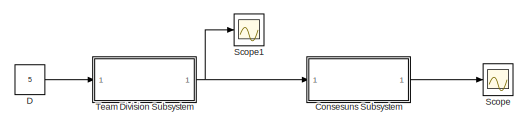
[diagram: root canvas - part 1/3, top left region]
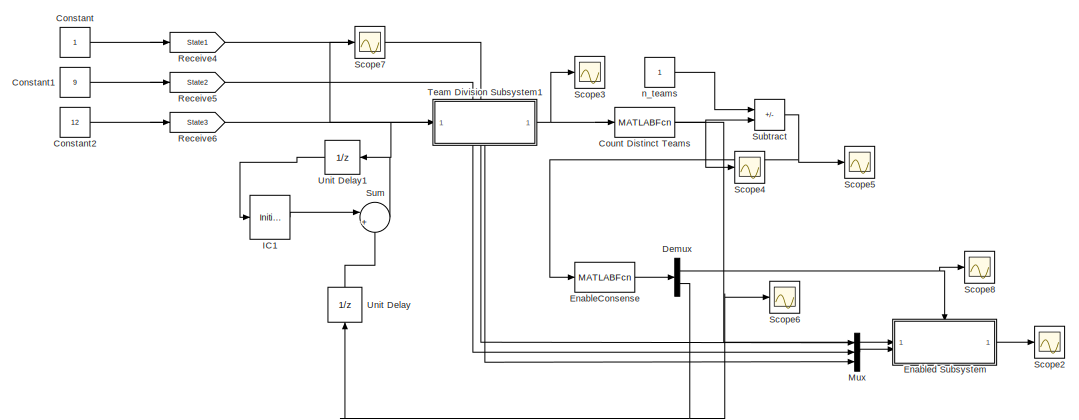
[diagram: root canvas - part 2/3, top right region]
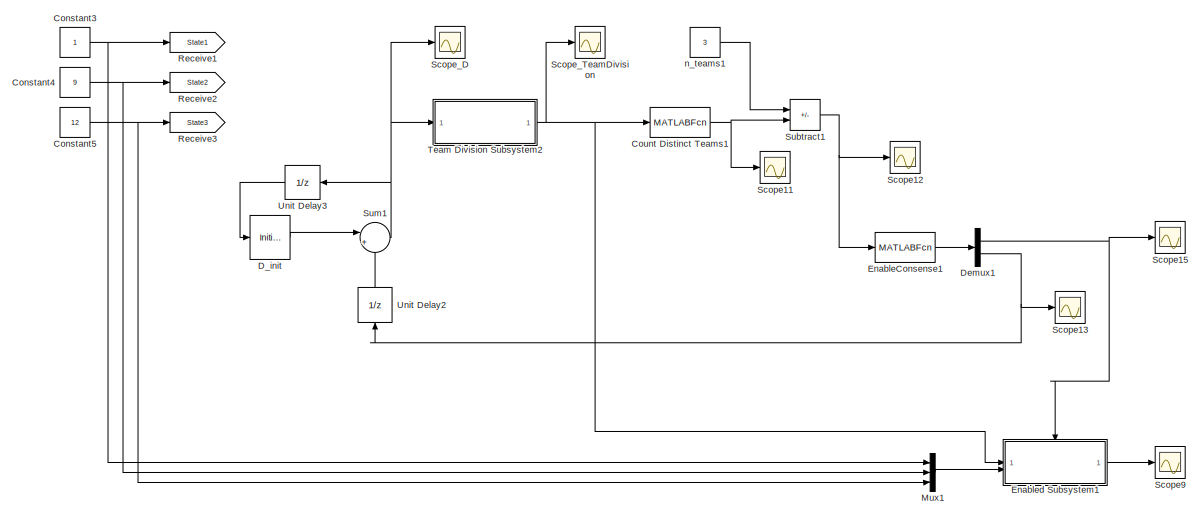
[diagram: root canvas - part 3/3, bottom left region]
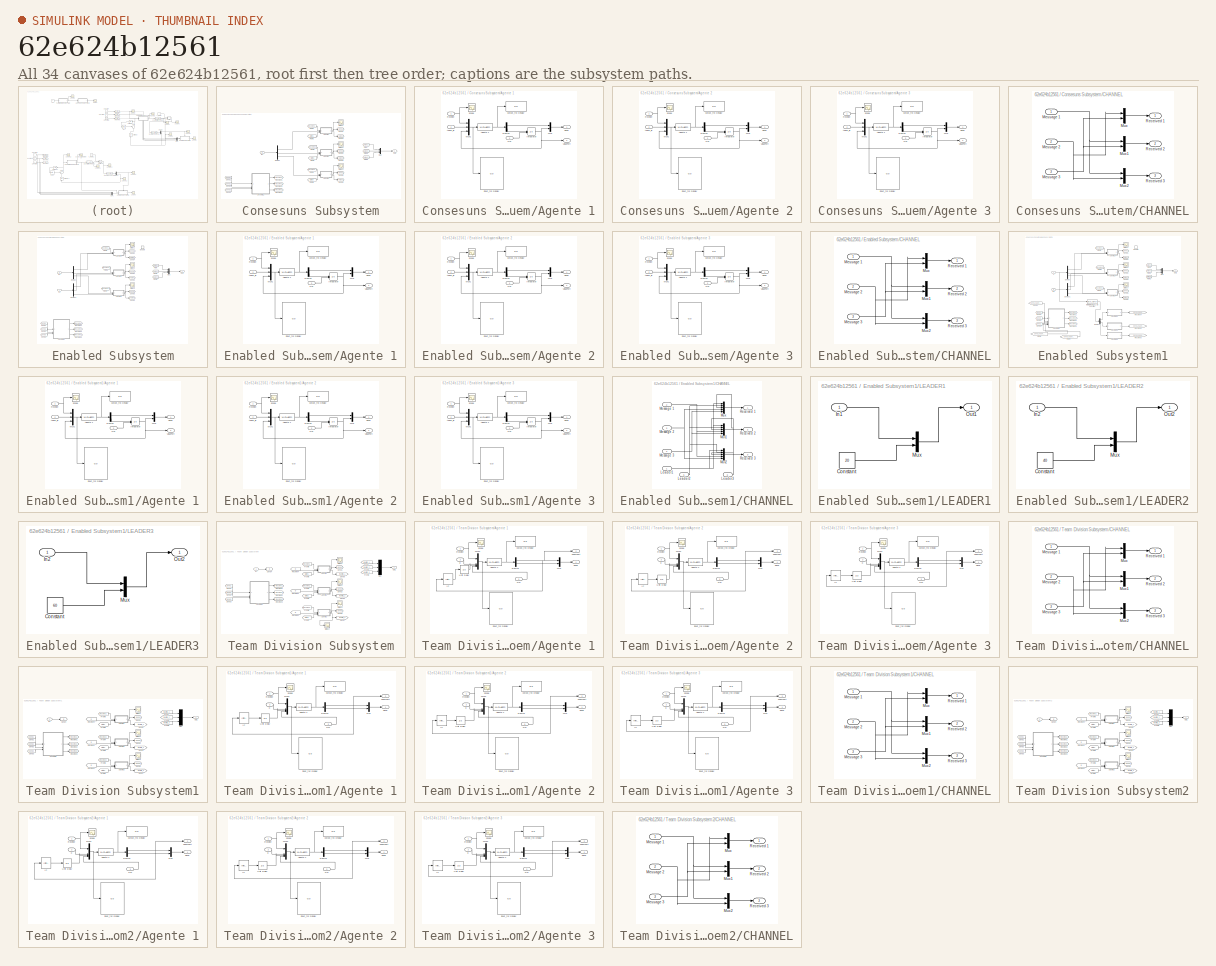
[diagram: thumbnail index - all 34 canvases of the model, root first then tree order]
MODEL slx_62e624b12561
KIND model
CONFIG AbsTol = auto
CONFIG EnableMultiTasking = off
CONFIG FixedStep = auto
CONFIG MaxStep = auto
CONFIG MinStep = auto
CONFIG RelTol = 1e-3
CONFIG SampleTimeConstraint = Unconstrained
CONFIG SolverName = VariableStepAuto
CONFIG StartTime = 0.0
CONFIG StopTime = 10
BLOCK [Goto]  Receive1
  GotoTag = State1
  TagVisibility = global
BLOCK [Goto]  Receive2
  GotoTag = State2
  TagVisibility = global
BLOCK [Goto]  Receive3
  GotoTag = State3
  TagVisibility = global
BLOCK [Goto]  Receive4
  Commented = on
  GotoTag = State1
  TagVisibility = global
BLOCK [Goto]  Receive5
  Commented = on
  GotoTag = State2
  TagVisibility = global
BLOCK [Goto]  Receive6
  Commented = on
  GotoTag = State3
  TagVisibility = global
BLOCK [SubSystem] Consesuns Subsystem
  Commented = on
BLOCK [Goto] Consesuns Subsystem/ Receive1
  GotoTag = Receive1
BLOCK [Goto] Consesuns Subsystem/ Receive2
  GotoTag = Receive2
BLOCK [Goto] Consesuns Subsystem/ Receive3
  GotoTag = Receive3
BLOCK [SubSystem] Consesuns Subsystem/Agente 1
BLOCK [MATLABFcn] Consesuns Subsystem/Agente 1/Agente 1
  MATLABFcn = consensus
  OutputDimensions = 2
BLOCK [Demux] Consesuns Subsystem/Agente 1/Demux
  Outputs = 2
BLOCK [Integrator] Consesuns Subsystem/Agente 1/Integrator
  InitialCondition = 1
  InitialConditionSource = external
BLOCK [Mux] Consesuns Subsystem/Agente 1/Mux
  DisplayOption = bar
  Inputs = 2
BLOCK [Mux] Consesuns Subsystem/Agente 1/Mux1
  DisplayOption = bar
  Inputs = 3
BLOCK [Inport] Consesuns Subsystem/Agente 1/Receive
BLOCK [Scope] Consesuns Subsystem/Agente 1/Scope
  Floating = off
  NumInputPorts = 1
  ScopeSpecificationString = Simulink.scopes.TimeScopeBlockCfg('CurrentConfiguration', extmgr.ConfigurationSet(extmgr.Configuration('Core','General UI',true),extmgr.Configuration('Core','Source UI',true),extmgr.Configuration('Sources','WiredSimulink',true,'DataLoggingVariableName','ScopeData6','DataLoggingSaveFormat','StructureWithTime','DataLoggingLimitDataPoints',true,'DataLoggingDecimation','1','DataLoggingDecimateData',tr...<+1750ch>  <repeated x18 — deduplicated; at blocks: Scope>
BLOCK [Outport] Consesuns Subsystem/Agente 1/Send
  VectorParamsAs1DForOutWhenUnconnected = off
BLOCK [Outport] Consesuns Subsystem/Agente 1/ValuePort
  Port = 2
BLOCK [Display] Consesuns Subsystem/Agente 1/input_fnc Display
  Decimation = 1
BLOCK [Display] Consesuns Subsystem/Agente 1/output_fnc Display
  Decimation = 1
BLOCK [Inport] Consesuns Subsystem/Agente 1/team_id
  Port = 2
BLOCK [Inport] Consesuns Subsystem/Agente 1/x(0)
  Port = 3
BLOCK [SubSystem] Consesuns Subsystem/Agente 2
BLOCK [MATLABFcn] Consesuns Subsystem/Agente 2/Agente 1
  MATLABFcn = consensus
  OutputDimensions = 2
BLOCK [Demux] Consesuns Subsystem/Agente 2/Demux
  Outputs = 2
BLOCK [Integrator] Consesuns Subsystem/Agente 2/Integrator
  InitialCondition = 1
  InitialConditionSource = external
BLOCK [Mux] Consesuns Subsystem/Agente 2/Mux
  DisplayOption = bar
  Inputs = 2
BLOCK [Mux] Consesuns Subsystem/Agente 2/Mux1
  DisplayOption = bar
  Inputs = 3
BLOCK [Inport] Consesuns Subsystem/Agente 2/Receive
BLOCK [Scope] Consesuns Subsystem/Agente 2/Scope
  Floating = off
  NumInputPorts = 1
BLOCK [Outport] Consesuns Subsystem/Agente 2/Send
  VectorParamsAs1DForOutWhenUnconnected = off
BLOCK [Outport] Consesuns Subsystem/Agente 2/ValuePort
  Port = 2
BLOCK [Display] Consesuns Subsystem/Agente 2/input_fnc Display
  Decimation = 1
BLOCK [Display] Consesuns Subsystem/Agente 2/output_fnc Display
  Decimation = 1
BLOCK [Inport] Consesuns Subsystem/Agente 2/team_id
  Port = 2
BLOCK [Inport] Consesuns Subsystem/Agente 2/x(0)
  Port = 3
BLOCK [SubSystem] Consesuns Subsystem/Agente 3
BLOCK [MATLABFcn] Consesuns Subsystem/Agente 3/Agente 1
  MATLABFcn = consensus
  OutputDimensions = 2
BLOCK [Demux] Consesuns Subsystem/Agente 3/Demux
  Outputs = 2
BLOCK [Integrator] Consesuns Subsystem/Agente 3/Integrator
  InitialCondition = 1
  InitialConditionSource = external
BLOCK [Mux] Consesuns Subsystem/Agente 3/Mux
  DisplayOption = bar
  Inputs = 2
BLOCK [Mux] Consesuns Subsystem/Agente 3/Mux1
  DisplayOption = bar
  Inputs = 3
BLOCK [Inport] Consesuns Subsystem/Agente 3/Receive
BLOCK [Scope] Consesuns Subsystem/Agente 3/Scope
  Floating = off
  NumInputPorts = 1
BLOCK [Outport] Consesuns Subsystem/Agente 3/Send
  VectorParamsAs1DForOutWhenUnconnected = off
BLOCK [Outport] Consesuns Subsystem/Agente 3/ValuePort
  Port = 2
BLOCK [Display] Consesuns Subsystem/Agente 3/input_fnc Display
  Decimation = 1
BLOCK [Display] Consesuns Subsystem/Agente 3/output_fnc Display
  Decimation = 1
BLOCK [Inport] Consesuns Subsystem/Agente 3/team_id
  Port = 2
BLOCK [Inport] Consesuns Subsystem/Agente 3/x(0)
  Port = 3
BLOCK [SubSystem] Consesuns Subsystem/CHANNEL
BLOCK [Inport] Consesuns Subsystem/CHANNEL/Message  2
  Port = 2
BLOCK [Inport] Consesuns Subsystem/CHANNEL/Message 1
BLOCK [Inport] Consesuns Subsystem/CHANNEL/Message 3
  Port = 3
BLOCK [Mux] Consesuns Subsystem/CHANNEL/Mux
  DisplayOption = bar
  Inputs = 2
BLOCK [Mux] Consesuns Subsystem/CHANNEL/Mux1
  DisplayOption = bar
  Inputs = 2
BLOCK [Mux] Consesuns Subsystem/CHANNEL/Mux2
  DisplayOption = bar
  Inputs = 2
BLOCK [Outport] Consesuns Subsystem/CHANNEL/Received 1
  VectorParamsAs1DForOutWhenUnconnected = off
BLOCK [Outport] Consesuns Subsystem/CHANNEL/Received 2
  Port = 2
  VectorParamsAs1DForOutWhenUnconnected = off
BLOCK [Outport] Consesuns Subsystem/CHANNEL/Received 3
  Port = 3
  VectorParamsAs1DForOutWhenUnconnected = off
BLOCK [Demux] Consesuns Subsystem/Demux
  Outputs = 3
BLOCK [From] Consesuns Subsystem/From
  GotoTag = Value1
BLOCK [From] Consesuns Subsystem/From1
  GotoTag = Value2
BLOCK [From] Consesuns Subsystem/From2
  GotoTag = Value3
BLOCK [From] Consesuns Subsystem/From3
  GotoTag = Receive2
BLOCK [From] Consesuns Subsystem/From4
  GotoTag = Receive3
BLOCK [From] Consesuns Subsystem/From5
  GotoTag = State1
  TagVisibility = global
BLOCK [From] Consesuns Subsystem/From6
  GotoTag = Receive1
BLOCK [From] Consesuns Subsystem/From7
  GotoTag = State2
  TagVisibility = global
BLOCK [From] Consesuns Subsystem/From8
  GotoTag = State3
  TagVisibility = global
BLOCK [Inport] Consesuns Subsystem/In1
BLOCK [Mux] Consesuns Subsystem/Mux
  DisplayOption = bar
  Inputs = 3
BLOCK [Outport] Consesuns Subsystem/Out1
BLOCK [Goto] Consesuns Subsystem/Send 1
  GotoTag = Send1
BLOCK [Goto] Consesuns Subsystem/Send 2
  GotoTag = Send2
BLOCK [Goto] Consesuns Subsystem/Send 3
  GotoTag = Value2
BLOCK [Goto] Consesuns Subsystem/Send 4
  GotoTag = Value1
BLOCK [Goto] Consesuns Subsystem/Send 5
  GotoTag = Send3
BLOCK [Goto] Consesuns Subsystem/Send 6
  GotoTag = Value3
BLOCK [From] Consesuns Subsystem/Send1
  CloseFcn = tagdialog Close
  GotoTag = Send1
BLOCK [From] Consesuns Subsystem/Send2
  CloseFcn = tagdialog Close
  GotoTag = Send2
BLOCK [From] Consesuns Subsystem/Send3
  CloseFcn = tagdialog Close
  GotoTag = Send3
BLOCK [Scope] Consesuns Subsystem/Status 1
  Floating = off
  NumInputPorts = 1
  ScopeSpecificationString = Simulink.scopes.TimeScopeBlockCfg('CurrentConfiguration', extmgr.ConfigurationSet(extmgr.Configuration('Core','General UI',true),extmgr.Configuration('Core','Source UI',true),extmgr.Configuration('Sources','WiredSimulink',true,'DataLoggingVariableName','ScopeData1','DataLoggingSaveFormat','StructureWithTime','DataLoggingDecimation','1','DataLoggingDecimateData',true),extmgr.Configuration('Visuals'...<+1691ch>
BLOCK [Scope] Consesuns Subsystem/Status 2
  Floating = off
  NumInputPorts = 1
  ScopeSpecificationString = Simulink.scopes.TimeScopeBlockCfg('CurrentConfiguration', extmgr.ConfigurationSet(extmgr.Configuration('Core','General UI',true),extmgr.Configuration('Core','Source UI',true),extmgr.Configuration('Sources','WiredSimulink',true,'DataLoggingVariableName','ScopeData4','DataLoggingSaveFormat','StructureWithTime','DataLoggingDecimation','1','DataLoggingDecimateData',true),extmgr.Configuration('Visuals'...<+1691ch>
BLOCK [Scope] Consesuns Subsystem/Status 3
  Floating = off
  NumInputPorts = 1
  ScopeSpecificationString = Simulink.scopes.TimeScopeBlockCfg('CurrentConfiguration', extmgr.ConfigurationSet(extmgr.Configuration('Core','General UI',true),extmgr.Configuration('Core','Source UI',true),extmgr.Configuration('Sources','WiredSimulink',true,'DataLoggingVariableName','ScopeData5','DataLoggingSaveFormat','StructureWithTime','DataLoggingDecimation','1','DataLoggingDecimateData',true),extmgr.Configuration('Visuals'...<+1691ch>
BLOCK [Constant] Constant
  Commented = on
BLOCK [Constant] Constant1
  Commented = on
  Value = 9
BLOCK [Constant] Constant2
  Commented = on
  Value = 12
BLOCK [Constant] Constant3
BLOCK [Constant] Constant4
  Value = 9
BLOCK [Constant] Constant5
  Value = 12
BLOCK [MATLABFcn] Count Distinct Teams
  Commented = on
  MATLABFcn = compute_n_teams
  OutputDimensions = 1
BLOCK [MATLABFcn] Count Distinct Teams1
  MATLABFcn = compute_n_teams
  OutputDimensions = 1
BLOCK [Constant] D
  Commented = on
  Value = 5
BLOCK [InitialCondition] D_init
  Value = 0
BLOCK [Demux] Demux
  Commented = on
  Outputs = 2
BLOCK [Demux] Demux1
  Outputs = 2
BLOCK [MATLABFcn] EnableConsense
  Commented = on
  MATLABFcn = enable_consensus
  OutputDimensions = 2
BLOCK [MATLABFcn] EnableConsense1
  MATLABFcn = enable_consensus
  OutputDimensions = 2
BLOCK [SubSystem] Enabled Subsystem
  Commented = on
  TreatAsAtomicUnit = on
BLOCK [Goto] Enabled Subsystem/ Receive1
  GotoTag = Receive1
BLOCK [Goto] Enabled Subsystem/ Receive2
  GotoTag = Receive2
BLOCK [Goto] Enabled Subsystem/ Receive3
  GotoTag = Receive3
BLOCK [SubSystem] Enabled Subsystem/Agente 1
BLOCK [MATLABFcn] Enabled Subsystem/Agente 1/Agente 1
  MATLABFcn = consensus
  OutputDimensions = 2
BLOCK [Demux] Enabled Subsystem/Agente 1/Demux
  Outputs = 2
BLOCK [Integrator] Enabled Subsystem/Agente 1/Integrator
  InitialCondition = 1
  InitialConditionSource = external
BLOCK [Mux] Enabled Subsystem/Agente 1/Mux
  DisplayOption = bar
  Inputs = 2
BLOCK [Mux] Enabled Subsystem/Agente 1/Mux1
  DisplayOption = bar
  Inputs = 3
BLOCK [Inport] Enabled Subsystem/Agente 1/Receive
BLOCK [Scope] Enabled Subsystem/Agente 1/Scope
  Floating = off
  NumInputPorts = 1
BLOCK [Outport] Enabled Subsystem/Agente 1/Send
  VectorParamsAs1DForOutWhenUnconnected = off
BLOCK [Outport] Enabled Subsystem/Agente 1/ValuePort
  Port = 2
BLOCK [Display] Enabled Subsystem/Agente 1/input_fnc Display
  Decimation = 1
BLOCK [Display] Enabled Subsystem/Agente 1/output_fnc Display
  Decimation = 1
BLOCK [Inport] Enabled Subsystem/Agente 1/team_id
  Port = 2
BLOCK [Inport] Enabled Subsystem/Agente 1/x(0)
  Port = 3
BLOCK [SubSystem] Enabled Subsystem/Agente 2
BLOCK [MATLABFcn] Enabled Subsystem/Agente 2/Agente 1
  MATLABFcn = consensus
  OutputDimensions = 2
BLOCK [Demux] Enabled Subsystem/Agente 2/Demux
  Outputs = 2
BLOCK [Integrator] Enabled Subsystem/Agente 2/Integrator
  InitialCondition = 1
  InitialConditionSource = external
BLOCK [Mux] Enabled Subsystem/Agente 2/Mux
  DisplayOption = bar
  Inputs = 2
BLOCK [Mux] Enabled Subsystem/Agente 2/Mux1
  DisplayOption = bar
  Inputs = 3
BLOCK [Inport] Enabled Subsystem/Agente 2/Receive
BLOCK [Scope] Enabled Subsystem/Agente 2/Scope
  Floating = off
  NumInputPorts = 1
BLOCK [Outport] Enabled Subsystem/Agente 2/Send
  VectorParamsAs1DForOutWhenUnconnected = off
BLOCK [Outport] Enabled Subsystem/Agente 2/ValuePort
  Port = 2
BLOCK [Display] Enabled Subsystem/Agente 2/input_fnc Display
  Decimation = 1
BLOCK [Display] Enabled Subsystem/Agente 2/output_fnc Display
  Decimation = 1
BLOCK [Inport] Enabled Subsystem/Agente 2/team_id
  Port = 2
BLOCK [Inport] Enabled Subsystem/Agente 2/x(0)
  Port = 3
BLOCK [SubSystem] Enabled Subsystem/Agente 3
BLOCK [MATLABFcn] Enabled Subsystem/Agente 3/Agente 1
  MATLABFcn = consensus
  OutputDimensions = 2
BLOCK [Demux] Enabled Subsystem/Agente 3/Demux
  Outputs = 2
BLOCK [Integrator] Enabled Subsystem/Agente 3/Integrator
  InitialCondition = 1
  InitialConditionSource = external
BLOCK [Mux] Enabled Subsystem/Agente 3/Mux
  DisplayOption = bar
  Inputs = 2
BLOCK [Mux] Enabled Subsystem/Agente 3/Mux1
  DisplayOption = bar
  Inputs = 3
BLOCK [Inport] Enabled Subsystem/Agente 3/Receive
BLOCK [Scope] Enabled Subsystem/Agente 3/Scope
  Floating = off
  NumInputPorts = 1
BLOCK [Outport] Enabled Subsystem/Agente 3/Send
  VectorParamsAs1DForOutWhenUnconnected = off
BLOCK [Outport] Enabled Subsystem/Agente 3/ValuePort
  Port = 2
BLOCK [Display] Enabled Subsystem/Agente 3/input_fnc Display
  Decimation = 1
BLOCK [Display] Enabled Subsystem/Agente 3/output_fnc Display
  Decimation = 1
BLOCK [Inport] Enabled Subsystem/Agente 3/team_id
  Port = 2
BLOCK [Inport] Enabled Subsystem/Agente 3/x(0)
  Port = 3
BLOCK [SubSystem] Enabled Subsystem/CHANNEL
BLOCK [Inport] Enabled Subsystem/CHANNEL/Message  2
  Port = 2
BLOCK [Inport] Enabled Subsystem/CHANNEL/Message 1
BLOCK [Inport] Enabled Subsystem/CHANNEL/Message 3
  Port = 3
BLOCK [Mux] Enabled Subsystem/CHANNEL/Mux
  DisplayOption = bar
  Inputs = 2
BLOCK [Mux] Enabled Subsystem/CHANNEL/Mux1
  DisplayOption = bar
  Inputs = 2
BLOCK [Mux] Enabled Subsystem/CHANNEL/Mux2
  DisplayOption = bar
  Inputs = 2
BLOCK [Outport] Enabled Subsystem/CHANNEL/Received 1
  VectorParamsAs1DForOutWhenUnconnected = off
BLOCK [Outport] Enabled Subsystem/CHANNEL/Received 2
  Port = 2
  VectorParamsAs1DForOutWhenUnconnected = off
BLOCK [Outport] Enabled Subsystem/CHANNEL/Received 3
  Port = 3
  VectorParamsAs1DForOutWhenUnconnected = off
BLOCK [Demux] Enabled Subsystem/Demux
  Outputs = 3
BLOCK [Demux] Enabled Subsystem/Demux1
  Outputs = 3
BLOCK [EnablePort] Enabled Subsystem/Enable
BLOCK [From] Enabled Subsystem/From
  GotoTag = Value1
BLOCK [From] Enabled Subsystem/From1
  GotoTag = Value2
BLOCK [From] Enabled Subsystem/From2
  GotoTag = Value3
BLOCK [From] Enabled Subsystem/From3
  GotoTag = Receive2
BLOCK [From] Enabled Subsystem/From4
  GotoTag = Receive3
BLOCK [From] Enabled Subsystem/From6
  GotoTag = Receive1
BLOCK [Inport] Enabled Subsystem/In1
BLOCK [Inport] Enabled Subsystem/In2
  Port = 2
BLOCK [Mux] Enabled Subsystem/Mux
  DisplayOption = bar
  Inputs = 3
BLOCK [Outport] Enabled Subsystem/Out1
BLOCK [Goto] Enabled Subsystem/Send 1
  GotoTag = Send1
BLOCK [Goto] Enabled Subsystem/Send 2
  GotoTag = Send2
BLOCK [Goto] Enabled Subsystem/Send 3
  GotoTag = Value2
BLOCK [Goto] Enabled Subsystem/Send 4
  GotoTag = Value1
BLOCK [Goto] Enabled Subsystem/Send 5
  GotoTag = Send3
BLOCK [Goto] Enabled Subsystem/Send 6
  GotoTag = Value3
BLOCK [From] Enabled Subsystem/Send1
  CloseFcn = tagdialog Close
  GotoTag = Send1
BLOCK [From] Enabled Subsystem/Send2
  CloseFcn = tagdialog Close
  GotoTag = Send2
BLOCK [From] Enabled Subsystem/Send3
  CloseFcn = tagdialog Close
  GotoTag = Send3
BLOCK [Scope] Enabled Subsystem/Status 1
  Floating = off
  NumInputPorts = 1
  ScopeSpecificationString = Simulink.scopes.TimeScopeBlockCfg('CurrentConfiguration', extmgr.ConfigurationSet(extmgr.Configuration('Core','General UI',true),extmgr.Configuration('Core','Source UI',true),extmgr.Configuration('Sources','WiredSimulink',true,'DataLoggingVariableName','ScopeData8','DataLoggingSaveFormat','StructureWithTime','DataLoggingDecimation','1','DataLoggingDecimateData',true),extmgr.Configuration('Visuals'...<+1691ch>
BLOCK [Scope] Enabled Subsystem/Status 2
  Floating = off
  NumInputPorts = 1
  ScopeSpecificationString = Simulink.scopes.TimeScopeBlockCfg('CurrentConfiguration', extmgr.ConfigurationSet(extmgr.Configuration('Core','General UI',true),extmgr.Configuration('Core','Source UI',true),extmgr.Configuration('Sources','WiredSimulink',true,'DataLoggingVariableName','ScopeData9','DataLoggingSaveFormat','StructureWithTime','DataLoggingDecimation','1','DataLoggingDecimateData',true),extmgr.Configuration('Visuals'...<+1691ch>
BLOCK [Scope] Enabled Subsystem/Status 3
  Floating = off
  NumInputPorts = 1
  ScopeSpecificationString = Simulink.scopes.TimeScopeBlockCfg('CurrentConfiguration', extmgr.ConfigurationSet(extmgr.Configuration('Core','General UI',true),extmgr.Configuration('Core','Source UI',true),extmgr.Configuration('Sources','WiredSimulink',true,'DataLoggingVariableName','ScopeData10','DataLoggingSaveFormat','StructureWithTime','DataLoggingDecimation','1','DataLoggingDecimateData',true),extmgr.Configuration('Visuals...<+1692ch>
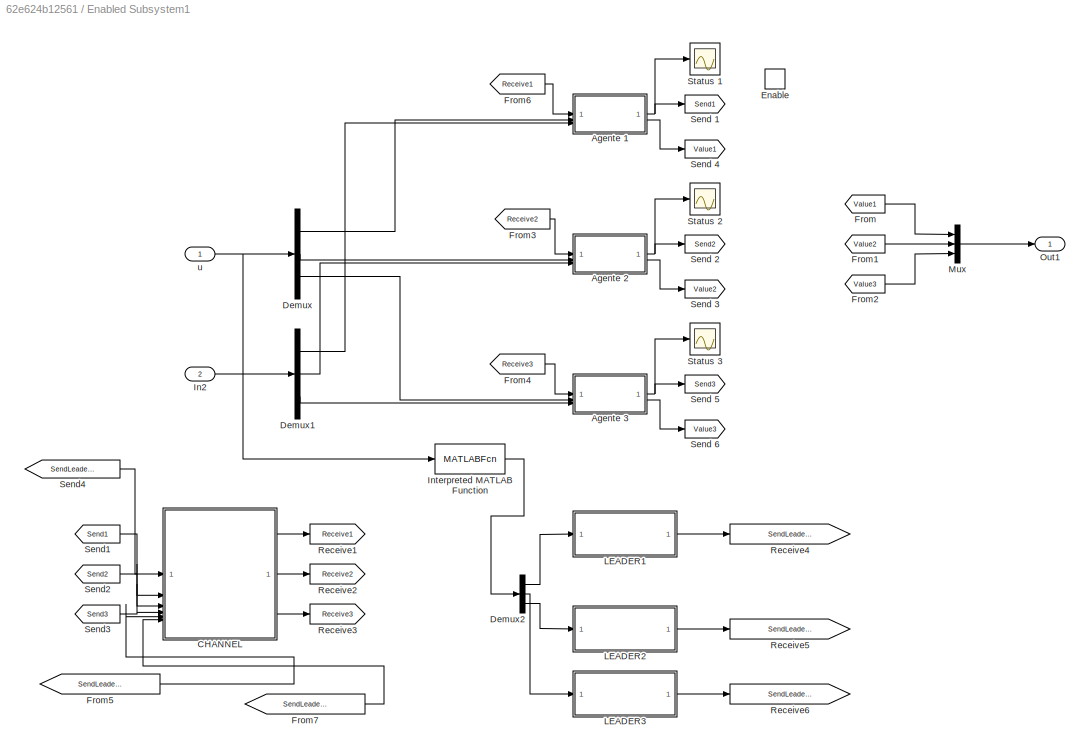
BLOCK [SubSystem] Enabled Subsystem1
  TreatAsAtomicUnit = on
BLOCK [Goto] Enabled Subsystem1/ Receive1
  GotoTag = Receive1
BLOCK [Goto] Enabled Subsystem1/ Receive2
  GotoTag = Receive2
BLOCK [Goto] Enabled Subsystem1/ Receive3
  GotoTag = Receive3
BLOCK [Goto] Enabled Subsystem1/ Receive4
  GotoTag = SendLeader1
BLOCK [Goto] Enabled Subsystem1/ Receive5
  GotoTag = SendLeader2
BLOCK [Goto] Enabled Subsystem1/ Receive6
  GotoTag = SendLeader3
BLOCK [SubSystem] Enabled Subsystem1/Agente 1
BLOCK [MATLABFcn] Enabled Subsystem1/Agente 1/Agente 1
  MATLABFcn = consensus
  OutputDimensions = 2
BLOCK [Demux] Enabled Subsystem1/Agente 1/Demux
  Outputs = 2
BLOCK [Integrator] Enabled Subsystem1/Agente 1/Integrator
  InitialCondition = 1
  InitialConditionSource = external
BLOCK [Mux] Enabled Subsystem1/Agente 1/Mux
  DisplayOption = bar
  Inputs = 2
BLOCK [Mux] Enabled Subsystem1/Agente 1/Mux1
  DisplayOption = bar
  Inputs = 3
BLOCK [Inport] Enabled Subsystem1/Agente 1/Receive
BLOCK [Scope] Enabled Subsystem1/Agente 1/Scope
  Floating = off
  NumInputPorts = 1
BLOCK [Outport] Enabled Subsystem1/Agente 1/Send
  VectorParamsAs1DForOutWhenUnconnected = off
BLOCK [Outport] Enabled Subsystem1/Agente 1/ValuePort
  Port = 2
BLOCK [Display] Enabled Subsystem1/Agente 1/input_fnc Display
  Decimation = 1
BLOCK [Display] Enabled Subsystem1/Agente 1/output_fnc Display
  Decimation = 1
BLOCK [Inport] Enabled Subsystem1/Agente 1/team_id
  Port = 2
BLOCK [Inport] Enabled Subsystem1/Agente 1/x(0)
  Port = 3
BLOCK [SubSystem] Enabled Subsystem1/Agente 2
BLOCK [MATLABFcn] Enabled Subsystem1/Agente 2/Agente 1
  MATLABFcn = consensus
  OutputDimensions = 2
BLOCK [Demux] Enabled Subsystem1/Agente 2/Demux
  Outputs = 2
BLOCK [Integrator] Enabled Subsystem1/Agente 2/Integrator
  InitialCondition = 1
  InitialConditionSource = external
BLOCK [Mux] Enabled Subsystem1/Agente 2/Mux
  DisplayOption = bar
  Inputs = 2
BLOCK [Mux] Enabled Subsystem1/Agente 2/Mux1
  DisplayOption = bar
  Inputs = 3
BLOCK [Inport] Enabled Subsystem1/Agente 2/Receive
BLOCK [Scope] Enabled Subsystem1/Agente 2/Scope
  Floating = off
  NumInputPorts = 1
BLOCK [Outport] Enabled Subsystem1/Agente 2/Send
  VectorParamsAs1DForOutWhenUnconnected = off
BLOCK [Outport] Enabled Subsystem1/Agente 2/ValuePort
  Port = 2
BLOCK [Display] Enabled Subsystem1/Agente 2/input_fnc Display
  Decimation = 1
BLOCK [Display] Enabled Subsystem1/Agente 2/output_fnc Display
  Decimation = 1
BLOCK [Inport] Enabled Subsystem1/Agente 2/team_id
  Port = 2
BLOCK [Inport] Enabled Subsystem1/Agente 2/x(0)
  Port = 3
BLOCK [SubSystem] Enabled Subsystem1/Agente 3
BLOCK [MATLABFcn] Enabled Subsystem1/Agente 3/Agente 1
  MATLABFcn = consensus
  OutputDimensions = 2
BLOCK [Demux] Enabled Subsystem1/Agente 3/Demux
  Outputs = 2
BLOCK [Integrator] Enabled Subsystem1/Agente 3/Integrator
  InitialCondition = 1
  InitialConditionSource = external
BLOCK [Mux] Enabled Subsystem1/Agente 3/Mux
  DisplayOption = bar
  Inputs = 2
BLOCK [Mux] Enabled Subsystem1/Agente 3/Mux1
  DisplayOption = bar
  Inputs = 3
BLOCK [Inport] Enabled Subsystem1/Agente 3/Receive
BLOCK [Scope] Enabled Subsystem1/Agente 3/Scope
  Floating = off
  NumInputPorts = 1
BLOCK [Outport] Enabled Subsystem1/Agente 3/Send
  VectorParamsAs1DForOutWhenUnconnected = off
BLOCK [Outport] Enabled Subsystem1/Agente 3/ValuePort
  Port = 2
BLOCK [Display] Enabled Subsystem1/Agente 3/input_fnc Display
  Decimation = 1
BLOCK [Display] Enabled Subsystem1/Agente 3/output_fnc Display
  Decimation = 1
BLOCK [Inport] Enabled Subsystem1/Agente 3/team_id
  Port = 2
BLOCK [Inport] Enabled Subsystem1/Agente 3/x(0)
  Port = 3
BLOCK [SubSystem] Enabled Subsystem1/CHANNEL
BLOCK [Inport] Enabled Subsystem1/CHANNEL/Leader1
BLOCK [Inport] Enabled Subsystem1/CHANNEL/Leader2
  Port = 5
BLOCK [Inport] Enabled Subsystem1/CHANNEL/Leader3
  Port = 6
BLOCK [Inport] Enabled Subsystem1/CHANNEL/Message  2
  Port = 3
BLOCK [Inport] Enabled Subsystem1/CHANNEL/Message 1
  Port = 2
BLOCK [Inport] Enabled Subsystem1/CHANNEL/Message 3
  Port = 4
BLOCK [Mux] Enabled Subsystem1/CHANNEL/Mux
  DisplayOption = bar
  Inputs = 5
BLOCK [Mux] Enabled Subsystem1/CHANNEL/Mux1
  DisplayOption = bar
  Inputs = 5
BLOCK [Mux] Enabled Subsystem1/CHANNEL/Mux2
  DisplayOption = bar
  Inputs = 5
BLOCK [Outport] Enabled Subsystem1/CHANNEL/Received 1
  VectorParamsAs1DForOutWhenUnconnected = off
BLOCK [Outport] Enabled Subsystem1/CHANNEL/Received 2
  Port = 2
  VectorParamsAs1DForOutWhenUnconnected = off
BLOCK [Outport] Enabled Subsystem1/CHANNEL/Received 3
  Port = 3
  VectorParamsAs1DForOutWhenUnconnected = off
BLOCK [Demux] Enabled Subsystem1/Demux
  Outputs = 3
BLOCK [Demux] Enabled Subsystem1/Demux1
  Outputs = 3
BLOCK [Demux] Enabled Subsystem1/Demux2
  Outputs = 3
BLOCK [EnablePort] Enabled Subsystem1/Enable
BLOCK [From] Enabled Subsystem1/From
  GotoTag = Value1
BLOCK [From] Enabled Subsystem1/From1
  GotoTag = Value2
BLOCK [From] Enabled Subsystem1/From2
  GotoTag = Value3
BLOCK [From] Enabled Subsystem1/From3
  GotoTag = Receive2
BLOCK [From] Enabled Subsystem1/From4
  GotoTag = Receive3
BLOCK [From] Enabled Subsystem1/From5
  GotoTag = SendLeader2
BLOCK [From] Enabled Subsystem1/From6
  GotoTag = Receive1
BLOCK [From] Enabled Subsystem1/From7
  GotoTag = SendLeader3
BLOCK [Inport] Enabled Subsystem1/In2
  Port = 2
BLOCK [MATLABFcn] Enabled Subsystem1/Interpreted MATLAB Function
  MATLABFcn = dispatch_team_ids
  OutputDimensions = 3
BLOCK [SubSystem] Enabled Subsystem1/LEADER1
BLOCK [Constant] Enabled Subsystem1/LEADER1/Constant
  Value = 20
BLOCK [Inport] Enabled Subsystem1/LEADER1/In1
BLOCK [Mux] Enabled Subsystem1/LEADER1/Mux
  DisplayOption = bar
  Inputs = 2
BLOCK [Outport] Enabled Subsystem1/LEADER1/Out1
BLOCK [SubSystem] Enabled Subsystem1/LEADER2
BLOCK [Constant] Enabled Subsystem1/LEADER2/Constant
  Value = 40
BLOCK [Inport] Enabled Subsystem1/LEADER2/In2
BLOCK [Mux] Enabled Subsystem1/LEADER2/Mux
  DisplayOption = bar
  Inputs = 2
BLOCK [Outport] Enabled Subsystem1/LEADER2/Out2
BLOCK [SubSystem] Enabled Subsystem1/LEADER3
BLOCK [Constant] Enabled Subsystem1/LEADER3/Constant
  Value = 60
BLOCK [Inport] Enabled Subsystem1/LEADER3/In2
BLOCK [Mux] Enabled Subsystem1/LEADER3/Mux
  DisplayOption = bar
  Inputs = 2
BLOCK [Outport] Enabled Subsystem1/LEADER3/Out2
BLOCK [Mux] Enabled Subsystem1/Mux
  DisplayOption = bar
  Inputs = 3
BLOCK [Outport] Enabled Subsystem1/Out1
BLOCK [Goto] Enabled Subsystem1/Send 1
  GotoTag = Send1
BLOCK [Goto] Enabled Subsystem1/Send 2
  GotoTag = Send2
BLOCK [Goto] Enabled Subsystem1/Send 3
  GotoTag = Value2
BLOCK [Goto] Enabled Subsystem1/Send 4
  GotoTag = Value1
BLOCK [Goto] Enabled Subsystem1/Send 5
  GotoTag = Send3
BLOCK [Goto] Enabled Subsystem1/Send 6
  GotoTag = Value3
BLOCK [From] Enabled Subsystem1/Send1
  CloseFcn = tagdialog Close
  GotoTag = Send1
BLOCK [From] Enabled Subsystem1/Send2
  CloseFcn = tagdialog Close
  GotoTag = Send2
BLOCK [From] Enabled Subsystem1/Send3
  CloseFcn = tagdialog Close
  GotoTag = Send3
BLOCK [From] Enabled Subsystem1/Send4
  CloseFcn = tagdialog Close
  GotoTag = SendLeader1
BLOCK [Scope] Enabled Subsystem1/Status 1
  Floating = off
  NumInputPorts = 1
  ScopeSpecificationString = Simulink.scopes.TimeScopeBlockCfg('CurrentConfiguration', extmgr.ConfigurationSet(extmgr.Configuration('Core','General UI',true),extmgr.Configuration('Core','Source UI',true),extmgr.Configuration('Sources','WiredSimulink',true,'DataLoggingVariableName','ScopeData8','DataLoggingSaveFormat','StructureWithTime','DataLoggingDecimation','1','DataLoggingDecimateData',true),extmgr.Configuration('Visuals'...<+1691ch>
BLOCK [Scope] Enabled Subsystem1/Status 2
  Floating = off
  NumInputPorts = 1
  ScopeSpecificationString = Simulink.scopes.TimeScopeBlockCfg('CurrentConfiguration', extmgr.ConfigurationSet(extmgr.Configuration('Core','General UI',true),extmgr.Configuration('Core','Source UI',true),extmgr.Configuration('Sources','WiredSimulink',true,'DataLoggingVariableName','ScopeData9','DataLoggingSaveFormat','StructureWithTime','DataLoggingDecimation','1','DataLoggingDecimateData',true),extmgr.Configuration('Visuals'...<+1691ch>
BLOCK [Scope] Enabled Subsystem1/Status 3
  Floating = off
  NumInputPorts = 1
  ScopeSpecificationString = Simulink.scopes.TimeScopeBlockCfg('CurrentConfiguration', extmgr.ConfigurationSet(extmgr.Configuration('Core','General UI',true),extmgr.Configuration('Core','Source UI',true),extmgr.Configuration('Sources','WiredSimulink',true,'DataLoggingVariableName','ScopeData10','DataLoggingSaveFormat','StructureWithTime','DataLoggingDecimation','1','DataLoggingDecimateData',true),extmgr.Configuration('Visuals...<+1692ch>
BLOCK [Inport] Enabled Subsystem1/u
BLOCK [InitialCondition] IC1
  Commented = on
  Value = 0
BLOCK [Mux] Mux
  Commented = on
  DisplayOption = bar
  Inputs = 3
BLOCK [Mux] Mux1
  DisplayOption = bar
  Inputs = 3
BLOCK [Scope] Scope
  Commented = on
  Floating = off
  NumInputPorts = 1
  ScopeSpecificationString = Simulink.scopes.TimeScopeBlockCfg('CurrentConfiguration', extmgr.ConfigurationSet(extmgr.Configuration('Core','General UI',true),extmgr.Configuration('Core','Source UI',true),extmgr.Configuration('Sources','WiredSimulink',true,'DataLoggingVariableName','ScopeData6'),extmgr.Configuration('Visuals','Time Domain',true,'SerializedDisplays',{struct('MinYLimReal','-0.375','MaxYLimReal','13.375','YLabelR...<+1455ch>
BLOCK [Scope] Scope1
  Commented = on
  Floating = off
  NumInputPorts = 1
  ScopeSpecificationString = Simulink.scopes.TimeScopeBlockCfg('CurrentConfiguration', extmgr.ConfigurationSet(extmgr.Configuration('Core','General UI',true),extmgr.Configuration('Core','Source UI',true),extmgr.Configuration('Sources','WiredSimulink',true,'DataLoggingVariableName','ScopeData3'),extmgr.Configuration('Visuals','Time Domain',true,'SerializedDisplays',{struct('MinYLimReal','-125.00000','MaxYLimReal','1125.00000',...<+1506ch>
BLOCK [Scope] Scope11
  Floating = off
  NumInputPorts = 1
  ScopeSpecificationString = Simulink.scopes.TimeScopeBlockCfg('CurrentConfiguration', extmgr.ConfigurationSet(extmgr.Configuration('Core','General UI',true),extmgr.Configuration('Core','Source UI',true),extmgr.Configuration('Sources','WiredSimulink',true,'DataLoggingVariableName','ScopeData12'),extmgr.Configuration('Visuals','Time Domain',true,'SerializedDisplays',{struct('MinYLimReal','0.75','MaxYLimReal','3.25','YLabelReal...<+1354ch>
BLOCK [Scope] Scope12
  Floating = off
  NumInputPorts = 1
  ScopeSpecificationString = Simulink.scopes.TimeScopeBlockCfg('CurrentConfiguration', extmgr.ConfigurationSet(extmgr.Configuration('Core','General UI',true),extmgr.Configuration('Core','Source UI',true),extmgr.Configuration('Sources','WiredSimulink',true,'DataLoggingVariableName','ScopeData13'),extmgr.Configuration('Visuals','Time Domain',true,'SerializedDisplays',{struct('MinYLimReal','-2.25','MaxYLimReal','0.25','YLabelRea...<+1350ch>
BLOCK [Scope] Scope13
  Floating = off
  NumInputPorts = 1
  ScopeSpecificationString = Simulink.scopes.TimeScopeBlockCfg('CurrentConfiguration', extmgr.ConfigurationSet(extmgr.Configuration('Core','General UI',true),extmgr.Configuration('Core','Source UI',true),extmgr.Configuration('Sources','WiredSimulink',true,'DataLoggingVariableName','ScopeData14'),extmgr.Configuration('Visuals','Time Domain',true,'SerializedDisplays',{struct('MinYLimReal','-0.125','MaxYLimReal','1.125','YLabelR...<+1355ch>
BLOCK [Scope] Scope15
  Floating = off
  NumInputPorts = 1
  ScopeSpecificationString = Simulink.scopes.TimeScopeBlockCfg('CurrentConfiguration', extmgr.ConfigurationSet(extmgr.Configuration('Core','General UI',true),extmgr.Configuration('Core','Source UI',true),extmgr.Configuration('Sources','WiredSimulink',true,'DataLoggingVariableName','ScopeData16'),extmgr.Configuration('Visuals','Time Domain',true,'SerializedDisplays',{struct('MinYLimReal','-0.125','MaxYLimReal','1.125','YLabelR...<+1355ch>
BLOCK [Scope] Scope2
  Commented = on
  Floating = off
  NumInputPorts = 1
  ScopeSpecificationString = Simulink.scopes.TimeScopeBlockCfg('CurrentConfiguration', extmgr.ConfigurationSet(extmgr.Configuration('Core','General UI',true),extmgr.Configuration('Core','Source UI',true),extmgr.Configuration('Sources','WiredSimulink',true,'DataLoggingVariableName','ScopeData1'),extmgr.Configuration('Visuals','Time Domain',true,'SerializedDisplays',{struct('MinYLimReal','7.29449','MaxYLimReal','7.35796','YLabe...<+1464ch>
BLOCK [Scope] Scope3
  Commented = on
  Floating = off
  NumInputPorts = 1
  ScopeSpecificationString = Simulink.scopes.TimeScopeBlockCfg('CurrentConfiguration', extmgr.ConfigurationSet(extmgr.Configuration('Core','General UI',true),extmgr.Configuration('Core','Source UI',true),extmgr.Configuration('Sources','WiredSimulink',true,'DataLoggingVariableName','ScopeData2'),extmgr.Configuration('Visuals','Time Domain',true,'SerializedDisplays',{struct('MinYLimReal','-37.5','MaxYLimReal','337.5','YLabelRea...<+1487ch>
BLOCK [Scope] Scope4
  Commented = on
  Floating = off
  NumInputPorts = 1
  ScopeSpecificationString = Simulink.scopes.TimeScopeBlockCfg('CurrentConfiguration', extmgr.ConfigurationSet(extmgr.Configuration('Core','General UI',true),extmgr.Configuration('Core','Source UI',true),extmgr.Configuration('Sources','WiredSimulink',true,'DataLoggingVariableName','ScopeData3'),extmgr.Configuration('Visuals','Time Domain',true,'SerializedDisplays',{struct('MinYLimReal','0.75','MaxYLimReal','3.25','YLabelReal'...<+1353ch>
BLOCK [Scope] Scope5
  Commented = on
  Floating = off
  NumInputPorts = 1
  ScopeSpecificationString = Simulink.scopes.TimeScopeBlockCfg('CurrentConfiguration', extmgr.ConfigurationSet(extmgr.Configuration('Core','General UI',true),extmgr.Configuration('Core','Source UI',true),extmgr.Configuration('Sources','WiredSimulink',true,'DataLoggingVariableName','ScopeData4'),extmgr.Configuration('Visuals','Time Domain',true,'SerializedDisplays',{struct('MinYLimReal','-2.25','MaxYLimReal','0.25','YLabelReal...<+1349ch>
BLOCK [Scope] Scope6
  Commented = on
  Floating = off
  NumInputPorts = 1
  ScopeSpecificationString = Simulink.scopes.TimeScopeBlockCfg('CurrentConfiguration', extmgr.ConfigurationSet(extmgr.Configuration('Core','General UI',true),extmgr.Configuration('Core','Source UI',true),extmgr.Configuration('Sources','WiredSimulink',true,'DataLoggingVariableName','ScopeData5'),extmgr.Configuration('Visuals','Time Domain',true,'SerializedDisplays',{struct('MinYLimReal','-0.125','MaxYLimReal','1.125','YLabelRe...<+1354ch>
BLOCK [Scope] Scope7
  Commented = on
  Floating = off
  NumInputPorts = 1
  ScopeSpecificationString = Simulink.scopes.TimeScopeBlockCfg('CurrentConfiguration', extmgr.ConfigurationSet(extmgr.Configuration('Core','General UI',true),extmgr.Configuration('Core','Source UI',true),extmgr.Configuration('Sources','WiredSimulink',true,'DataLoggingVariableName','ScopeData6'),extmgr.Configuration('Visuals','Time Domain',true,'SerializedDisplays',{struct('MinYLimReal','-53.00000','MaxYLimReal','7.00000','YLa...<+1443ch>
BLOCK [Scope] Scope8
  Commented = on
  Floating = off
  NumInputPorts = 1
  ScopeSpecificationString = Simulink.scopes.TimeScopeBlockCfg('CurrentConfiguration', extmgr.ConfigurationSet(extmgr.Configuration('Core','General UI',true),extmgr.Configuration('Core','Source UI',true),extmgr.Configuration('Sources','WiredSimulink',true,'DataLoggingVariableName','ScopeData7'),extmgr.Configuration('Visuals','Time Domain',true,'SerializedDisplays',{struct('MinYLimReal','-0.125','MaxYLimReal','1.125','YLabelRe...<+1354ch>
BLOCK [Scope] Scope9
  Floating = off
  NumInputPorts = 1
  ScopeSpecificationString = Simulink.scopes.TimeScopeBlockCfg('CurrentConfiguration', extmgr.ConfigurationSet(extmgr.Configuration('Core','General UI',true),extmgr.Configuration('Core','Source UI',true),extmgr.Configuration('Sources','WiredSimulink',true,'DataLoggingVariableName','ScopeData17'),extmgr.Configuration('Visuals','Time Domain',true,'SerializedDisplays',{struct('MinYLimReal','-7.49965','MaxYLimReal','67.49682','YL...<+1474ch>
BLOCK [Scope] Scope_D
  Floating = off
  NumInputPorts = 1
  ScopeSpecificationString = Simulink.scopes.TimeScopeBlockCfg('CurrentConfiguration', extmgr.ConfigurationSet(extmgr.Configuration('Core','General UI',true),extmgr.Configuration('Core','Source UI',true),extmgr.Configuration('Sources','WiredSimulink',true,'DataLoggingVariableName','ScopeData15'),extmgr.Configuration('Visuals','Time Domain',true,'SerializedDisplays',{struct('MinYLimReal','-53.00000','MaxYLimReal','7.00000','YL...<+1445ch>
BLOCK [Scope] Scope_TeamDivision
  Floating = off
  NumInputPorts = 1
  ScopeSpecificationString = Simulink.scopes.TimeScopeBlockCfg('CurrentConfiguration', extmgr.ConfigurationSet(extmgr.Configuration('Core','General UI',true),extmgr.Configuration('Core','Source UI',true),extmgr.Configuration('Sources','WiredSimulink',true,'DataLoggingVariableName','ScopeData11'),extmgr.Configuration('Visuals','Time Domain',true,'SerializedDisplays',{struct('MinYLimReal','-37.5','MaxYLimReal','337.5','YLabelRe...<+1488ch>
BLOCK [Sum] Subtract
  Commented = on
  IconShape = rectangular
  Inputs = +-
BLOCK [Sum] Subtract1
  IconShape = rectangular
  Inputs = +-
BLOCK [Sum] Sum
  Commented = on
  Inputs = |++
BLOCK [Sum] Sum1
  Inputs = |++
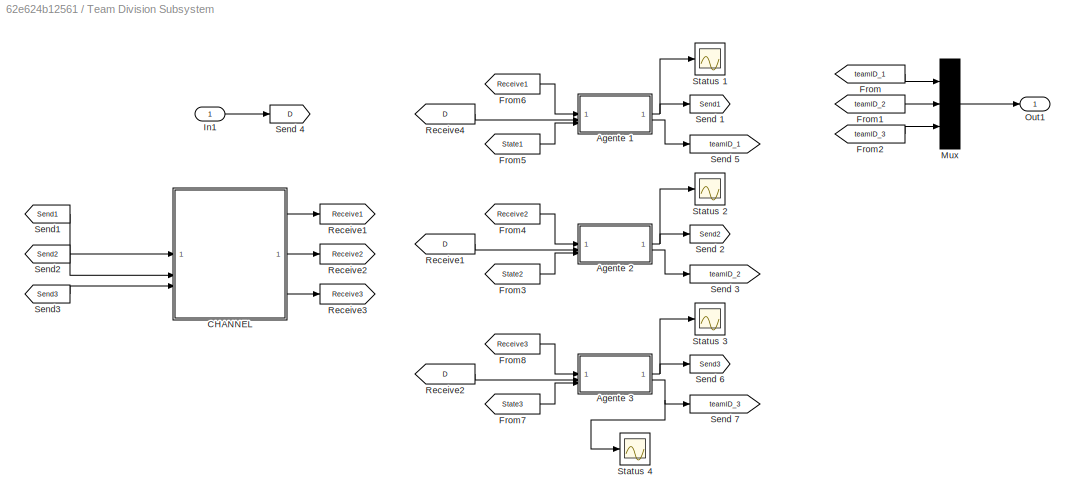
BLOCK [SubSystem] Team Division Subsystem
  Commented = on
BLOCK [Goto] Team Division Subsystem/ Receive1
  GotoTag = Receive1
BLOCK [Goto] Team Division Subsystem/ Receive2
  GotoTag = Receive2
BLOCK [Goto] Team Division Subsystem/ Receive3
  GotoTag = Receive3
BLOCK [SubSystem] Team Division Subsystem/Agente 1
BLOCK [MATLABFcn] Team Division Subsystem/Agente 1/Agente 1
  MATLABFcn = team_division
  OutputDimensions = 2
BLOCK [Demux] Team Division Subsystem/Agente 1/Demux
  Outputs = 2
BLOCK [InitialCondition] Team Division Subsystem/Agente 1/IC
  Value = 1000
BLOCK [Mux] Team Division Subsystem/Agente 1/Mux
  DisplayOption = bar
  Inputs = 2
BLOCK [Mux] Team Division Subsystem/Agente 1/Mux1
  DisplayOption = bar
BLOCK [Inport] Team Division Subsystem/Agente 1/Receive
BLOCK [Scope] Team Division Subsystem/Agente 1/Scope
  Floating = off
  NumInputPorts = 1
BLOCK [Outport] Team Division Subsystem/Agente 1/Send
  VectorParamsAs1DForOutWhenUnconnected = off
BLOCK [Outport] Team Division Subsystem/Agente 1/TeamPort
  Port = 2
BLOCK [UnitDelay] Team Division Subsystem/Agente 1/Unit Delay
  HasFrameUpgradeWarning = on
  SampleTime = -1
BLOCK [Inport] Team Division Subsystem/Agente 1/d
  Port = 2
BLOCK [Display] Team Division Subsystem/Agente 1/input_fnc Display
  Decimation = 1
BLOCK [Display] Team Division Subsystem/Agente 1/output_fnc Display
  Decimation = 1
BLOCK [Inport] Team Division Subsystem/Agente 1/x(0)
  Port = 3
BLOCK [SubSystem] Team Division Subsystem/Agente 2
BLOCK [MATLABFcn] Team Division Subsystem/Agente 2/Agente 1
  MATLABFcn = team_division
  OutputDimensions = 2
BLOCK [Demux] Team Division Subsystem/Agente 2/Demux
  Outputs = 2
BLOCK [InitialCondition] Team Division Subsystem/Agente 2/IC
  Value = 1001
BLOCK [Mux] Team Division Subsystem/Agente 2/Mux
  DisplayOption = bar
  Inputs = 2
BLOCK [Mux] Team Division Subsystem/Agente 2/Mux1
  DisplayOption = bar
BLOCK [Inport] Team Division Subsystem/Agente 2/Receive
BLOCK [Scope] Team Division Subsystem/Agente 2/Scope
  Floating = off
  NumInputPorts = 1
BLOCK [Outport] Team Division Subsystem/Agente 2/Send
  VectorParamsAs1DForOutWhenUnconnected = off
BLOCK [Outport] Team Division Subsystem/Agente 2/TeamPort
  Port = 2
BLOCK [UnitDelay] Team Division Subsystem/Agente 2/Unit Delay
  HasFrameUpgradeWarning = on
  SampleTime = -1
BLOCK [Inport] Team Division Subsystem/Agente 2/d
  Port = 2
BLOCK [Display] Team Division Subsystem/Agente 2/input_fnc Display
  Decimation = 1
BLOCK [Display] Team Division Subsystem/Agente 2/output_fnc Display
  Decimation = 1
BLOCK [Inport] Team Division Subsystem/Agente 2/x(0)
  Port = 3
BLOCK [SubSystem] Team Division Subsystem/Agente 3
BLOCK [MATLABFcn] Team Division Subsystem/Agente 3/Agente 1
  MATLABFcn = team_division
  OutputDimensions = 2
BLOCK [Demux] Team Division Subsystem/Agente 3/Demux
  Outputs = 2
BLOCK [InitialCondition] Team Division Subsystem/Agente 3/IC
  Value = 1002
BLOCK [Mux] Team Division Subsystem/Agente 3/Mux
  DisplayOption = bar
  Inputs = 2
BLOCK [Mux] Team Division Subsystem/Agente 3/Mux1
  DisplayOption = bar
BLOCK [Inport] Team Division Subsystem/Agente 3/Receive
BLOCK [Scope] Team Division Subsystem/Agente 3/Scope
  Floating = off
  NumInputPorts = 1
BLOCK [Outport] Team Division Subsystem/Agente 3/Send
  VectorParamsAs1DForOutWhenUnconnected = off
BLOCK [Outport] Team Division Subsystem/Agente 3/TeamPort
  Port = 2
BLOCK [UnitDelay] Team Division Subsystem/Agente 3/Unit Delay
  HasFrameUpgradeWarning = on
  SampleTime = -1
BLOCK [Inport] Team Division Subsystem/Agente 3/d
  Port = 2
BLOCK [Display] Team Division Subsystem/Agente 3/input_fnc Display
  Decimation = 1
BLOCK [Display] Team Division Subsystem/Agente 3/output_fnc Display
  Decimation = 1
BLOCK [Inport] Team Division Subsystem/Agente 3/x(0)
  Port = 3
BLOCK [SubSystem] Team Division Subsystem/CHANNEL
BLOCK [Inport] Team Division Subsystem/CHANNEL/Message  2
  Port = 2
BLOCK [Inport] Team Division Subsystem/CHANNEL/Message 1
BLOCK [Inport] Team Division Subsystem/CHANNEL/Message 3
  Port = 3
BLOCK [Mux] Team Division Subsystem/CHANNEL/Mux
  DisplayOption = bar
  Inputs = 2
BLOCK [Mux] Team Division Subsystem/CHANNEL/Mux1
  DisplayOption = bar
  Inputs = 2
BLOCK [Mux] Team Division Subsystem/CHANNEL/Mux2
  DisplayOption = bar
  Inputs = 2
BLOCK [Outport] Team Division Subsystem/CHANNEL/Received 1
  VectorParamsAs1DForOutWhenUnconnected = off
BLOCK [Outport] Team Division Subsystem/CHANNEL/Received 2
  Port = 2
  VectorParamsAs1DForOutWhenUnconnected = off
BLOCK [Outport] Team Division Subsystem/CHANNEL/Received 3
  Port = 3
  VectorParamsAs1DForOutWhenUnconnected = off
BLOCK [From] Team Division Subsystem/From
  GotoTag = teamID_1
BLOCK [From] Team Division Subsystem/From1
  GotoTag = teamID_2
BLOCK [From] Team Division Subsystem/From2
  GotoTag = teamID_3
BLOCK [From] Team Division Subsystem/From3
  GotoTag = State2
  TagVisibility = global
BLOCK [From] Team Division Subsystem/From4
  GotoTag = Receive2
BLOCK [From] Team Division Subsystem/From5
  GotoTag = State1
  TagVisibility = global
BLOCK [From] Team Division Subsystem/From6
  GotoTag = Receive1
BLOCK [From] Team Division Subsystem/From7
  GotoTag = State3
  TagVisibility = global
BLOCK [From] Team Division Subsystem/From8
  GotoTag = Receive3
BLOCK [Inport] Team Division Subsystem/In1
BLOCK [Mux] Team Division Subsystem/Mux
  DisplayOption = bar
  Inputs = 3
BLOCK [Outport] Team Division Subsystem/Out1
BLOCK [From] Team Division Subsystem/Receive1
  CloseFcn = tagdialog Close
  GotoTag = D
  TagVisibility = global
BLOCK [From] Team Division Subsystem/Receive2
  CloseFcn = tagdialog Close
  GotoTag = D
  TagVisibility = global
BLOCK [From] Team Division Subsystem/Receive4
  CloseFcn = tagdialog Close
  GotoTag = D
  TagVisibility = global
BLOCK [Goto] Team Division Subsystem/Send 1
  GotoTag = Send1
BLOCK [Goto] Team Division Subsystem/Send 2
  GotoTag = Send2
BLOCK [Goto] Team Division Subsystem/Send 3
  GotoTag = teamID_2
BLOCK [Goto] Team Division Subsystem/Send 4
  GotoTag = D
  TagVisibility = global
BLOCK [Goto] Team Division Subsystem/Send 5
  GotoTag = teamID_1
BLOCK [Goto] Team Division Subsystem/Send 6
  GotoTag = Send3
BLOCK [Goto] Team Division Subsystem/Send 7
  GotoTag = teamID_3
BLOCK [From] Team Division Subsystem/Send1
  CloseFcn = tagdialog Close
  GotoTag = Send1
BLOCK [From] Team Division Subsystem/Send2
  CloseFcn = tagdialog Close
  GotoTag = Send2
BLOCK [From] Team Division Subsystem/Send3
  CloseFcn = tagdialog Close
  GotoTag = Send3
BLOCK [Scope] Team Division Subsystem/Status 1
  Floating = off
  NumInputPorts = 1
  ScopeSpecificationString = Simulink.scopes.TimeScopeBlockCfg('CurrentConfiguration', extmgr.ConfigurationSet(extmgr.Configuration('Core','General UI',true),extmgr.Configuration('Core','Source UI',true),extmgr.Configuration('Sources','WiredSimulink',true,'DataLoggingVariableName','ScopeData1','DataLoggingSaveFormat','StructureWithTime','DataLoggingDecimation','1','DataLoggingDecimateData',true),extmgr.Configuration('Visuals'...<+1697ch>
BLOCK [Scope] Team Division Subsystem/Status 2
  Floating = off
  NumInputPorts = 1
  ScopeSpecificationString = Simulink.scopes.TimeScopeBlockCfg('CurrentConfiguration', extmgr.ConfigurationSet(extmgr.Configuration('Core','General UI',true),extmgr.Configuration('Core','Source UI',true),extmgr.Configuration('Sources','WiredSimulink',true,'DataLoggingVariableName','ScopeData1','DataLoggingSaveFormat','StructureWithTime','DataLoggingDecimation','1','DataLoggingDecimateData',true),extmgr.Configuration('Visuals'...<+1697ch>
BLOCK [Scope] Team Division Subsystem/Status 3
  Floating = off
  NumInputPorts = 1
  ScopeSpecificationString = Simulink.scopes.TimeScopeBlockCfg('CurrentConfiguration', extmgr.ConfigurationSet(extmgr.Configuration('Core','General UI',true),extmgr.Configuration('Core','Source UI',true),extmgr.Configuration('Sources','WiredSimulink',true,'DataLoggingVariableName','ScopeData2','DataLoggingSaveFormat','StructureWithTime','DataLoggingDecimation','1','DataLoggingDecimateData',true),extmgr.Configuration('Visuals'...<+1689ch>
BLOCK [Scope] Team Division Subsystem/Status 4
  Floating = off
  NumInputPorts = 1
  ScopeSpecificationString = Simulink.scopes.TimeScopeBlockCfg('CurrentConfiguration', extmgr.ConfigurationSet(extmgr.Configuration('Core','General UI',true),extmgr.Configuration('Core','Source UI',true),extmgr.Configuration('Sources','WiredSimulink',true,'DataLoggingVariableName','ScopeData1','DataLoggingSaveFormat','StructureWithTime','DataLoggingDecimation','1','DataLoggingDecimateData',true),extmgr.Configuration('Visuals'...<+1672ch>
BLOCK [SubSystem] Team Division Subsystem1
  Commented = on
BLOCK [Goto] Team Division Subsystem1/ Receive1
  GotoTag = Receive1
BLOCK [Goto] Team Division Subsystem1/ Receive2
  GotoTag = Receive2
BLOCK [Goto] Team Division Subsystem1/ Receive3
  GotoTag = Receive3
BLOCK [SubSystem] Team Division Subsystem1/Agente 1
BLOCK [MATLABFcn] Team Division Subsystem1/Agente 1/Agente 1
  MATLABFcn = team_division
  OutputDimensions = 2
BLOCK [Demux] Team Division Subsystem1/Agente 1/Demux
  Outputs = 2
BLOCK [InitialCondition] Team Division Subsystem1/Agente 1/IC
  Value = 100
BLOCK [Mux] Team Division Subsystem1/Agente 1/Mux
  DisplayOption = bar
  Inputs = 2
BLOCK [Mux] Team Division Subsystem1/Agente 1/Mux1
  DisplayOption = bar
BLOCK [Inport] Team Division Subsystem1/Agente 1/Receive
BLOCK [Scope] Team Division Subsystem1/Agente 1/Scope
  Floating = off
  NumInputPorts = 1
BLOCK [Outport] Team Division Subsystem1/Agente 1/Send
  VectorParamsAs1DForOutWhenUnconnected = off
BLOCK [Outport] Team Division Subsystem1/Agente 1/TeamPort
  Port = 2
BLOCK [UnitDelay] Team Division Subsystem1/Agente 1/Unit Delay
  HasFrameUpgradeWarning = on
  SampleTime = -1
BLOCK [Inport] Team Division Subsystem1/Agente 1/d
  Port = 2
BLOCK [Display] Team Division Subsystem1/Agente 1/input_fnc Display
  Decimation = 1
BLOCK [Display] Team Division Subsystem1/Agente 1/output_fnc Display
  Decimation = 1
BLOCK [Inport] Team Division Subsystem1/Agente 1/x(0)
  Port = 3
BLOCK [SubSystem] Team Division Subsystem1/Agente 2
BLOCK [MATLABFcn] Team Division Subsystem1/Agente 2/Agente 1
  MATLABFcn = team_division
  OutputDimensions = 2
BLOCK [Demux] Team Division Subsystem1/Agente 2/Demux
  Outputs = 2
BLOCK [InitialCondition] Team Division Subsystem1/Agente 2/IC
  Value = 200
BLOCK [Mux] Team Division Subsystem1/Agente 2/Mux
  DisplayOption = bar
  Inputs = 2
BLOCK [Mux] Team Division Subsystem1/Agente 2/Mux1
  DisplayOption = bar
BLOCK [Inport] Team Division Subsystem1/Agente 2/Receive
BLOCK [Scope] Team Division Subsystem1/Agente 2/Scope
  Floating = off
  NumInputPorts = 1
BLOCK [Outport] Team Division Subsystem1/Agente 2/Send
  VectorParamsAs1DForOutWhenUnconnected = off
BLOCK [Outport] Team Division Subsystem1/Agente 2/TeamPort
  Port = 2
BLOCK [UnitDelay] Team Division Subsystem1/Agente 2/Unit Delay
  HasFrameUpgradeWarning = on
  SampleTime = -1
BLOCK [Inport] Team Division Subsystem1/Agente 2/d
  Port = 2
BLOCK [Display] Team Division Subsystem1/Agente 2/input_fnc Display
  Decimation = 1
BLOCK [Display] Team Division Subsystem1/Agente 2/output_fnc Display
  Decimation = 1
BLOCK [Inport] Team Division Subsystem1/Agente 2/x(0)
  Port = 3
BLOCK [SubSystem] Team Division Subsystem1/Agente 3
BLOCK [MATLABFcn] Team Division Subsystem1/Agente 3/Agente 1
  MATLABFcn = team_division
  OutputDimensions = 2
BLOCK [Demux] Team Division Subsystem1/Agente 3/Demux
  Outputs = 2
BLOCK [InitialCondition] Team Division Subsystem1/Agente 3/IC
  Value = 300
BLOCK [Mux] Team Division Subsystem1/Agente 3/Mux
  DisplayOption = bar
  Inputs = 2
BLOCK [Mux] Team Division Subsystem1/Agente 3/Mux1
  DisplayOption = bar
BLOCK [Inport] Team Division Subsystem1/Agente 3/Receive
BLOCK [Scope] Team Division Subsystem1/Agente 3/Scope
  Floating = off
  NumInputPorts = 1
BLOCK [Outport] Team Division Subsystem1/Agente 3/Send
  VectorParamsAs1DForOutWhenUnconnected = off
BLOCK [Outport] Team Division Subsystem1/Agente 3/TeamPort
  Port = 2
BLOCK [UnitDelay] Team Division Subsystem1/Agente 3/Unit Delay
  HasFrameUpgradeWarning = on
  SampleTime = -1
BLOCK [Inport] Team Division Subsystem1/Agente 3/d
  Port = 2
BLOCK [Display] Team Division Subsystem1/Agente 3/input_fnc Display
  Decimation = 1
BLOCK [Display] Team Division Subsystem1/Agente 3/output_fnc Display
  Decimation = 1
BLOCK [Inport] Team Division Subsystem1/Agente 3/x(0)
  Port = 3
BLOCK [SubSystem] Team Division Subsystem1/CHANNEL
BLOCK [Inport] Team Division Subsystem1/CHANNEL/Message  2
  Port = 2
BLOCK [Inport] Team Division Subsystem1/CHANNEL/Message 1
BLOCK [Inport] Team Division Subsystem1/CHANNEL/Message 3
  Port = 3
BLOCK [Mux] Team Division Subsystem1/CHANNEL/Mux
  DisplayOption = bar
  Inputs = 2
BLOCK [Mux] Team Division Subsystem1/CHANNEL/Mux1
  DisplayOption = bar
  Inputs = 2
BLOCK [Mux] Team Division Subsystem1/CHANNEL/Mux2
  DisplayOption = bar
  Inputs = 2
BLOCK [Outport] Team Division Subsystem1/CHANNEL/Received 1
  VectorParamsAs1DForOutWhenUnconnected = off
BLOCK [Outport] Team Division Subsystem1/CHANNEL/Received 2
  Port = 2
  VectorParamsAs1DForOutWhenUnconnected = off
BLOCK [Outport] Team Division Subsystem1/CHANNEL/Received 3
  Port = 3
  VectorParamsAs1DForOutWhenUnconnected = off
BLOCK [From] Team Division Subsystem1/From
  GotoTag = teamID_1
BLOCK [From] Team Division Subsystem1/From1
  GotoTag = teamID_2
BLOCK [From] Team Division Subsystem1/From2
  GotoTag = teamID_3
BLOCK [From] Team Division Subsystem1/From3
  GotoTag = State2
  TagVisibility = global
BLOCK [From] Team Division Subsystem1/From4
  GotoTag = Receive2
BLOCK [From] Team Division Subsystem1/From5
  GotoTag = State1
  TagVisibility = global
BLOCK [From] Team Division Subsystem1/From6
  GotoTag = Receive1
BLOCK [From] Team Division Subsystem1/From7
  GotoTag = State3
  TagVisibility = global
BLOCK [From] Team Division Subsystem1/From8
  GotoTag = Receive3
BLOCK [Inport] Team Division Subsystem1/In1
BLOCK [Mux] Team Division Subsystem1/Mux
  DisplayOption = bar
  Inputs = 3
BLOCK [Outport] Team Division Subsystem1/Out1
BLOCK [From] Team Division Subsystem1/Receive1
  CloseFcn = tagdialog Close
  GotoTag = D
BLOCK [From] Team Division Subsystem1/Receive2
  CloseFcn = tagdialog Close
  GotoTag = D
BLOCK [From] Team Division Subsystem1/Receive4
  CloseFcn = tagdialog Close
  GotoTag = D
BLOCK [Goto] Team Division Subsystem1/Send 1
  GotoTag = Send1
BLOCK [Goto] Team Division Subsystem1/Send 2
  GotoTag = Send2
BLOCK [Goto] Team Division Subsystem1/Send 3
  GotoTag = teamID_2
BLOCK [Goto] Team Division Subsystem1/Send 4
  GotoTag = D
BLOCK [Goto] Team Division Subsystem1/Send 5
  GotoTag = teamID_1
BLOCK [Goto] Team Division Subsystem1/Send 6
  GotoTag = Send3
BLOCK [Goto] Team Division Subsystem1/Send 7
  GotoTag = teamID_3
BLOCK [From] Team Division Subsystem1/Send1
  CloseFcn = tagdialog Close
  GotoTag = Send1
BLOCK [From] Team Division Subsystem1/Send2
  CloseFcn = tagdialog Close
  GotoTag = Send2
BLOCK [From] Team Division Subsystem1/Send3
  CloseFcn = tagdialog Close
  GotoTag = Send3
BLOCK [Scope] Team Division Subsystem1/Status 1
  Floating = off
  NumInputPorts = 1
  ScopeSpecificationString = Simulink.scopes.TimeScopeBlockCfg('CurrentConfiguration', extmgr.ConfigurationSet(extmgr.Configuration('Core','General UI',true),extmgr.Configuration('Core','Source UI',true),extmgr.Configuration('Sources','WiredSimulink',true,'DataLoggingVariableName','ScopeData1','DataLoggingSaveFormat','StructureWithTime','DataLoggingDecimation','1','DataLoggingDecimateData',true),extmgr.Configuration('Visuals'...<+1775ch>  <repeated x4 — deduplicated; at blocks: Status 1, Status 2>
BLOCK [Scope] Team Division Subsystem1/Status 2
  Floating = off
  NumInputPorts = 1
BLOCK [Scope] Team Division Subsystem1/Status 3
  Floating = off
  NumInputPorts = 1
  ScopeSpecificationString = Simulink.scopes.TimeScopeBlockCfg('CurrentConfiguration', extmgr.ConfigurationSet(extmgr.Configuration('Core','General UI',true),extmgr.Configuration('Core','Source UI',true),extmgr.Configuration('Sources','WiredSimulink',true,'DataLoggingVariableName','ScopeData2','DataLoggingSaveFormat','StructureWithTime','DataLoggingDecimation','1','DataLoggingDecimateData',true),extmgr.Configuration('Visuals'...<+1695ch>
BLOCK [SubSystem] Team Division Subsystem2
BLOCK [Goto] Team Division Subsystem2/ Receive1
  GotoTag = Receive1
BLOCK [Goto] Team Division Subsystem2/ Receive2
  GotoTag = Receive2
BLOCK [Goto] Team Division Subsystem2/ Receive3
  GotoTag = Receive3
BLOCK [SubSystem] Team Division Subsystem2/Agente 1
BLOCK [MATLABFcn] Team Division Subsystem2/Agente 1/Agente 1
  MATLABFcn = team_division
  OutputDimensions = 2
BLOCK [Demux] Team Division Subsystem2/Agente 1/Demux
  Outputs = 2
BLOCK [InitialCondition] Team Division Subsystem2/Agente 1/IC
  Value = 100
BLOCK [Mux] Team Division Subsystem2/Agente 1/Mux
  DisplayOption = bar
  Inputs = 2
BLOCK [Mux] Team Division Subsystem2/Agente 1/Mux1
  DisplayOption = bar
BLOCK [Inport] Team Division Subsystem2/Agente 1/Receive
BLOCK [Scope] Team Division Subsystem2/Agente 1/Scope
  Floating = off
  NumInputPorts = 1
BLOCK [Outport] Team Division Subsystem2/Agente 1/Send
  VectorParamsAs1DForOutWhenUnconnected = off
BLOCK [Outport] Team Division Subsystem2/Agente 1/TeamPort
  Port = 2
BLOCK [UnitDelay] Team Division Subsystem2/Agente 1/Unit Delay
  HasFrameUpgradeWarning = on
  SampleTime = -1
BLOCK [Inport] Team Division Subsystem2/Agente 1/d
  Port = 2
BLOCK [Display] Team Division Subsystem2/Agente 1/input_fnc Display
  Decimation = 1
BLOCK [Display] Team Division Subsystem2/Agente 1/output_fnc Display
  Decimation = 1
BLOCK [Inport] Team Division Subsystem2/Agente 1/x(0)
  Port = 3
BLOCK [SubSystem] Team Division Subsystem2/Agente 2
BLOCK [MATLABFcn] Team Division Subsystem2/Agente 2/Agente 1
  MATLABFcn = team_division
  OutputDimensions = 2
BLOCK [Demux] Team Division Subsystem2/Agente 2/Demux
  Outputs = 2
BLOCK [InitialCondition] Team Division Subsystem2/Agente 2/IC
  Value = 200
BLOCK [Mux] Team Division Subsystem2/Agente 2/Mux
  DisplayOption = bar
  Inputs = 2
BLOCK [Mux] Team Division Subsystem2/Agente 2/Mux1
  DisplayOption = bar
BLOCK [Inport] Team Division Subsystem2/Agente 2/Receive
BLOCK [Scope] Team Division Subsystem2/Agente 2/Scope
  Floating = off
  NumInputPorts = 1
BLOCK [Outport] Team Division Subsystem2/Agente 2/Send
  VectorParamsAs1DForOutWhenUnconnected = off
BLOCK [Outport] Team Division Subsystem2/Agente 2/TeamPort
  Port = 2
BLOCK [UnitDelay] Team Division Subsystem2/Agente 2/Unit Delay
  HasFrameUpgradeWarning = on
  SampleTime = -1
BLOCK [Inport] Team Division Subsystem2/Agente 2/d
  Port = 2
BLOCK [Display] Team Division Subsystem2/Agente 2/input_fnc Display
  Decimation = 1
BLOCK [Display] Team Division Subsystem2/Agente 2/output_fnc Display
  Decimation = 1
BLOCK [Inport] Team Division Subsystem2/Agente 2/x(0)
  Port = 3
BLOCK [SubSystem] Team Division Subsystem2/Agente 3
BLOCK [MATLABFcn] Team Division Subsystem2/Agente 3/Agente 1
  MATLABFcn = team_division
  OutputDimensions = 2
BLOCK [Demux] Team Division Subsystem2/Agente 3/Demux
  Outputs = 2
BLOCK [InitialCondition] Team Division Subsystem2/Agente 3/IC
  Value = 300
BLOCK [Mux] Team Division Subsystem2/Agente 3/Mux
  DisplayOption = bar
  Inputs = 2
BLOCK [Mux] Team Division Subsystem2/Agente 3/Mux1
  DisplayOption = bar
BLOCK [Inport] Team Division Subsystem2/Agente 3/Receive
BLOCK [Scope] Team Division Subsystem2/Agente 3/Scope
  Floating = off
  NumInputPorts = 1
BLOCK [Outport] Team Division Subsystem2/Agente 3/Send
  VectorParamsAs1DForOutWhenUnconnected = off
BLOCK [Outport] Team Division Subsystem2/Agente 3/TeamPort
  Port = 2
BLOCK [UnitDelay] Team Division Subsystem2/Agente 3/Unit Delay
  HasFrameUpgradeWarning = on
  SampleTime = -1
BLOCK [Inport] Team Division Subsystem2/Agente 3/d
  Port = 2
BLOCK [Display] Team Division Subsystem2/Agente 3/input_fnc Display
  Decimation = 1
BLOCK [Display] Team Division Subsystem2/Agente 3/output_fnc Display
  Decimation = 1
BLOCK [Inport] Team Division Subsystem2/Agente 3/x(0)
  Port = 3
BLOCK [SubSystem] Team Division Subsystem2/CHANNEL
BLOCK [Inport] Team Division Subsystem2/CHANNEL/Message  2
  Port = 2
BLOCK [Inport] Team Division Subsystem2/CHANNEL/Message 1
BLOCK [Inport] Team Division Subsystem2/CHANNEL/Message 3
  Port = 3
BLOCK [Mux] Team Division Subsystem2/CHANNEL/Mux
  DisplayOption = bar
  Inputs = 2
BLOCK [Mux] Team Division Subsystem2/CHANNEL/Mux1
  DisplayOption = bar
  Inputs = 2
BLOCK [Mux] Team Division Subsystem2/CHANNEL/Mux2
  DisplayOption = bar
  Inputs = 2
BLOCK [Outport] Team Division Subsystem2/CHANNEL/Received 1
  VectorParamsAs1DForOutWhenUnconnected = off
BLOCK [Outport] Team Division Subsystem2/CHANNEL/Received 2
  Port = 2
  VectorParamsAs1DForOutWhenUnconnected = off
BLOCK [Outport] Team Division Subsystem2/CHANNEL/Received 3
  Port = 3
  VectorParamsAs1DForOutWhenUnconnected = off
BLOCK [From] Team Division Subsystem2/From
  GotoTag = teamID_1
BLOCK [From] Team Division Subsystem2/From1
  GotoTag = teamID_2
BLOCK [From] Team Division Subsystem2/From2
  GotoTag = teamID_3
BLOCK [From] Team Division Subsystem2/From3
  GotoTag = State2
  TagVisibility = global
BLOCK [From] Team Division Subsystem2/From4
  GotoTag = Receive2
BLOCK [From] Team Division Subsystem2/From5
  GotoTag = State1
  TagVisibility = global
BLOCK [From] Team Division Subsystem2/From6
  GotoTag = Receive1
BLOCK [From] Team Division Subsystem2/From7
  GotoTag = State3
  TagVisibility = global
BLOCK [From] Team Division Subsystem2/From8
  GotoTag = Receive3
BLOCK [Inport] Team Division Subsystem2/In1
BLOCK [Mux] Team Division Subsystem2/Mux
  DisplayOption = bar
  Inputs = 3
BLOCK [Outport] Team Division Subsystem2/Out1
BLOCK [From] Team Division Subsystem2/Receive1
  CloseFcn = tagdialog Close
  GotoTag = D
BLOCK [From] Team Division Subsystem2/Receive2
  CloseFcn = tagdialog Close
  GotoTag = D
BLOCK [From] Team Division Subsystem2/Receive4
  CloseFcn = tagdialog Close
  GotoTag = D
BLOCK [Goto] Team Division Subsystem2/Send 1
  GotoTag = Send1
BLOCK [Goto] Team Division Subsystem2/Send 2
  GotoTag = Send2
BLOCK [Goto] Team Division Subsystem2/Send 3
  GotoTag = teamID_2
BLOCK [Goto] Team Division Subsystem2/Send 4
  GotoTag = D
BLOCK [Goto] Team Division Subsystem2/Send 5
  GotoTag = teamID_1
BLOCK [Goto] Team Division Subsystem2/Send 6
  GotoTag = Send3
BLOCK [Goto] Team Division Subsystem2/Send 7
  GotoTag = teamID_3
BLOCK [From] Team Division Subsystem2/Send1
  CloseFcn = tagdialog Close
  GotoTag = Send1
BLOCK [From] Team Division Subsystem2/Send2
  CloseFcn = tagdialog Close
  GotoTag = Send2
BLOCK [From] Team Division Subsystem2/Send3
  CloseFcn = tagdialog Close
  GotoTag = Send3
BLOCK [Scope] Team Division Subsystem2/Status 1
  Floating = off
  NumInputPorts = 1
BLOCK [Scope] Team Division Subsystem2/Status 2
  Floating = off
  NumInputPorts = 1
BLOCK [Scope] Team Division Subsystem2/Status 3
  Floating = off
  NumInputPorts = 1
  ScopeSpecificationString = Simulink.scopes.TimeScopeBlockCfg('CurrentConfiguration', extmgr.ConfigurationSet(extmgr.Configuration('Core','General UI',true),extmgr.Configuration('Core','Source UI',true),extmgr.Configuration('Sources','WiredSimulink',true,'DataLoggingVariableName','ScopeData2','DataLoggingSaveFormat','StructureWithTime','DataLoggingDecimation','1','DataLoggingDecimateData',true),extmgr.Configuration('Visuals'...<+1695ch>
BLOCK [UnitDelay] Unit Delay
  Commented = on
  HasFrameUpgradeWarning = on
  NameLocation = right
  SampleTime = -1
BLOCK [UnitDelay] Unit Delay1
  Commented = on
  HasFrameUpgradeWarning = on
  NameLocation = top
  SampleTime = -1
BLOCK [UnitDelay] Unit Delay2
  HasFrameUpgradeWarning = on
  NameLocation = right
  SampleTime = -1
BLOCK [UnitDelay] Unit Delay3
  HasFrameUpgradeWarning = on
  NameLocation = top
  SampleTime = -1
BLOCK [Constant] n_teams
  Commented = on
BLOCK [Constant] n_teams1
  Value = 3
NET Consesuns Subsystem/Agente 1/Agente 1:1 -> Consesuns Subsystem/Agente 1/Demux:1, Consesuns Subsystem/Agente 1/output_fnc Display:1
LINE Consesuns Subsystem/Agente 1/Demux:1 -> Consesuns Subsystem/Agente 1/Mux:1
LINE Consesuns Subsystem/Agente 1/Demux:2 -> Consesuns Subsystem/Agente 1/Integrator:1
NET Consesuns Subsystem/Agente 1/Integrator:1 -> Consesuns Subsystem/Agente 1/Mux1:3, Consesuns Subsystem/Agente 1/Mux:2, Consesuns Subsystem/Agente 1/ValuePort:1
NET Consesuns Subsystem/Agente 1/Mux1:1 -> Consesuns Subsystem/Agente 1/Agente 1:1, Consesuns Subsystem/Agente 1/input_fnc Display:1
LINE Consesuns Subsystem/Agente 1/Mux:1 -> Consesuns Subsystem/Agente 1/Send:1
NET Consesuns Subsystem/Agente 1/Receive:1 -> Consesuns Subsystem/Agente 1/Mux1:1, Consesuns Subsystem/Agente 1/Scope:1
LINE Consesuns Subsystem/Agente 1/team_id:1 -> Consesuns Subsystem/Agente 1/Mux1:2
LINE Consesuns Subsystem/Agente 1/x(0):1 -> Consesuns Subsystem/Agente 1/Integrator:2
NET Consesuns Subsystem/Agente 1:1 -> Consesuns Subsystem/Send 1:1, Consesuns Subsystem/Status 1:1
LINE Consesuns Subsystem/Agente 1:2 -> Consesuns Subsystem/Send 4:1
NET Consesuns Subsystem/Agente 2/Agente 1:1 -> Consesuns Subsystem/Agente 2/Demux:1, Consesuns Subsystem/Agente 2/output_fnc Display:1
LINE Consesuns Subsystem/Agente 2/Demux:1 -> Consesuns Subsystem/Agente 2/Mux:1
LINE Consesuns Subsystem/Agente 2/Demux:2 -> Consesuns Subsystem/Agente 2/Integrator:1
NET Consesuns Subsystem/Agente 2/Integrator:1 -> Consesuns Subsystem/Agente 2/Mux1:3, Consesuns Subsystem/Agente 2/Mux:2, Consesuns Subsystem/Agente 2/ValuePort:1
NET Consesuns Subsystem/Agente 2/Mux1:1 -> Consesuns Subsystem/Agente 2/Agente 1:1, Consesuns Subsystem/Agente 2/input_fnc Display:1
LINE Consesuns Subsystem/Agente 2/Mux:1 -> Consesuns Subsystem/Agente 2/Send:1
NET Consesuns Subsystem/Agente 2/Receive:1 -> Consesuns Subsystem/Agente 2/Mux1:1, Consesuns Subsystem/Agente 2/Scope:1
LINE Consesuns Subsystem/Agente 2/team_id:1 -> Consesuns Subsystem/Agente 2/Mux1:2
LINE Consesuns Subsystem/Agente 2/x(0):1 -> Consesuns Subsystem/Agente 2/Integrator:2
NET Consesuns Subsystem/Agente 2:1 -> Consesuns Subsystem/Send 2:1, Consesuns Subsystem/Status 2:1
LINE Consesuns Subsystem/Agente 2:2 -> Consesuns Subsystem/Send 3:1
NET Consesuns Subsystem/Agente 3/Agente 1:1 -> Consesuns Subsystem/Agente 3/Demux:1, Consesuns Subsystem/Agente 3/output_fnc Display:1
LINE Consesuns Subsystem/Agente 3/Demux:1 -> Consesuns Subsystem/Agente 3/Mux:1
LINE Consesuns Subsystem/Agente 3/Demux:2 -> Consesuns Subsystem/Agente 3/Integrator:1
NET Consesuns Subsystem/Agente 3/Integrator:1 -> Consesuns Subsystem/Agente 3/Mux1:3, Consesuns Subsystem/Agente 3/Mux:2, Consesuns Subsystem/Agente 3/ValuePort:1
NET Consesuns Subsystem/Agente 3/Mux1:1 -> Consesuns Subsystem/Agente 3/Agente 1:1, Consesuns Subsystem/Agente 3/input_fnc Display:1
LINE Consesuns Subsystem/Agente 3/Mux:1 -> Consesuns Subsystem/Agente 3/Send:1
NET Consesuns Subsystem/Agente 3/Receive:1 -> Consesuns Subsystem/Agente 3/Mux1:1, Consesuns Subsystem/Agente 3/Scope:1
LINE Consesuns Subsystem/Agente 3/team_id:1 -> Consesuns Subsystem/Agente 3/Mux1:2
LINE Consesuns Subsystem/Agente 3/x(0):1 -> Consesuns Subsystem/Agente 3/Integrator:2
NET Consesuns Subsystem/Agente 3:1 -> Consesuns Subsystem/Send 5:1, Consesuns Subsystem/Status 3:1
LINE Consesuns Subsystem/Agente 3:2 -> Consesuns Subsystem/Send 6:1
NET Consesuns Subsystem/CHANNEL/Message  2:1 -> Consesuns Subsystem/CHANNEL/Mux2:2, Consesuns Subsystem/CHANNEL/Mux:1
NET Consesuns Subsystem/CHANNEL/Message 1:1 -> Consesuns Subsystem/CHANNEL/Mux1:1, Consesuns Subsystem/CHANNEL/Mux2:1
NET Consesuns Subsystem/CHANNEL/Message 3:1 -> Consesuns Subsystem/CHANNEL/Mux1:2, Consesuns Subsystem/CHANNEL/Mux:2
LINE Consesuns Subsystem/CHANNEL/Mux1:1 -> Consesuns Subsystem/CHANNEL/Received 2:1
LINE Consesuns Subsystem/CHANNEL/Mux2:1 -> Consesuns Subsystem/CHANNEL/Received 3:1
LINE Consesuns Subsystem/CHANNEL/Mux:1 -> Consesuns Subsystem/CHANNEL/Received 1:1
LINE Consesuns Subsystem/CHANNEL:1 -> Consesuns Subsystem/ Receive1:1
LINE Consesuns Subsystem/CHANNEL:2 -> Consesuns Subsystem/ Receive2:1
LINE Consesuns Subsystem/CHANNEL:3 -> Consesuns Subsystem/ Receive3:1
LINE Consesuns Subsystem/Demux:1 -> Consesuns Subsystem/Agente 1:2
LINE Consesuns Subsystem/Demux:2 -> Consesuns Subsystem/Agente 2:2
LINE Consesuns Subsystem/Demux:3 -> Consesuns Subsystem/Agente 3:2
LINE Consesuns Subsystem/From1:1 -> Consesuns Subsystem/Mux:2
LINE Consesuns Subsystem/From2:1 -> Consesuns Subsystem/Mux:3
LINE Consesuns Subsystem/From3:1 -> Consesuns Subsystem/Agente 2:1
LINE Consesuns Subsystem/From4:1 -> Consesuns Subsystem/Agente 3:1
LINE Consesuns Subsystem/From5:1 -> Consesuns Subsystem/Agente 1:3
LINE Consesuns Subsystem/From6:1 -> Consesuns Subsystem/Agente 1:1
LINE Consesuns Subsystem/From7:1 -> Consesuns Subsystem/Agente 2:3
LINE Consesuns Subsystem/From8:1 -> Consesuns Subsystem/Agente 3:3
LINE Consesuns Subsystem/From:1 -> Consesuns Subsystem/Mux:1
LINE Consesuns Subsystem/In1:1 -> Consesuns Subsystem/Demux:1
LINE Consesuns Subsystem/Mux:1 -> Consesuns Subsystem/Out1:1
LINE Consesuns Subsystem/Send1:1 -> Consesuns Subsystem/CHANNEL:1
LINE Consesuns Subsystem/Send2:1 -> Consesuns Subsystem/CHANNEL:2
LINE Consesuns Subsystem/Send3:1 -> Consesuns Subsystem/CHANNEL:3
LINE Consesuns Subsystem:1 -> Scope:1
NET Constant1:1 ->  Receive5:1, Mux:2
NET Constant2:1 ->  Receive6:1, Mux:3
NET Constant3:1 ->  Receive1:1, Mux1:1
NET Constant4:1 ->  Receive2:1, Mux1:2
NET Constant5:1 ->  Receive3:1, Mux1:3
NET Constant:1 ->  Receive4:1, Mux:1
NET Count Distinct Teams1:1 -> Scope11:1, Subtract1:2
NET Count Distinct Teams:1 -> Scope4:1, Subtract:2
LINE D:1 -> Team Division Subsystem:1
LINE D_init:1 -> Sum1:1
NET Demux1:1 -> Enabled Subsystem1:enable, Scope15:1
NET Demux1:2 -> Scope13:1, Unit Delay2:1
NET Demux:1 -> Enabled Subsystem:enable, Scope8:1
NET Demux:2 -> Scope6:1, Unit Delay:1
LINE EnableConsense1:1 -> Demux1:1
LINE EnableConsense:1 -> Demux:1
NET Enabled Subsystem/Agente 1/Agente 1:1 -> Enabled Subsystem/Agente 1/Demux:1, Enabled Subsystem/Agente 1/output_fnc Display:1
LINE Enabled Subsystem/Agente 1/Demux:1 -> Enabled Subsystem/Agente 1/Mux:1
LINE Enabled Subsystem/Agente 1/Demux:2 -> Enabled Subsystem/Agente 1/Integrator:1
NET Enabled Subsystem/Agente 1/Integrator:1 -> Enabled Subsystem/Agente 1/Mux1:3, Enabled Subsystem/Agente 1/Mux:2, Enabled Subsystem/Agente 1/ValuePort:1
NET Enabled Subsystem/Agente 1/Mux1:1 -> Enabled Subsystem/Agente 1/Agente 1:1, Enabled Subsystem/Agente 1/input_fnc Display:1
LINE Enabled Subsystem/Agente 1/Mux:1 -> Enabled Subsystem/Agente 1/Send:1
NET Enabled Subsystem/Agente 1/Receive:1 -> Enabled Subsystem/Agente 1/Mux1:1, Enabled Subsystem/Agente 1/Scope:1
LINE Enabled Subsystem/Agente 1/team_id:1 -> Enabled Subsystem/Agente 1/Mux1:2
LINE Enabled Subsystem/Agente 1/x(0):1 -> Enabled Subsystem/Agente 1/Integrator:2
NET Enabled Subsystem/Agente 1:1 -> Enabled Subsystem/Send 1:1, Enabled Subsystem/Status 1:1
LINE Enabled Subsystem/Agente 1:2 -> Enabled Subsystem/Send 4:1
NET Enabled Subsystem/Agente 2/Agente 1:1 -> Enabled Subsystem/Agente 2/Demux:1, Enabled Subsystem/Agente 2/output_fnc Display:1
LINE Enabled Subsystem/Agente 2/Demux:1 -> Enabled Subsystem/Agente 2/Mux:1
LINE Enabled Subsystem/Agente 2/Demux:2 -> Enabled Subsystem/Agente 2/Integrator:1
NET Enabled Subsystem/Agente 2/Integrator:1 -> Enabled Subsystem/Agente 2/Mux1:3, Enabled Subsystem/Agente 2/Mux:2, Enabled Subsystem/Agente 2/ValuePort:1
NET Enabled Subsystem/Agente 2/Mux1:1 -> Enabled Subsystem/Agente 2/Agente 1:1, Enabled Subsystem/Agente 2/input_fnc Display:1
LINE Enabled Subsystem/Agente 2/Mux:1 -> Enabled Subsystem/Agente 2/Send:1
NET Enabled Subsystem/Agente 2/Receive:1 -> Enabled Subsystem/Agente 2/Mux1:1, Enabled Subsystem/Agente 2/Scope:1
LINE Enabled Subsystem/Agente 2/team_id:1 -> Enabled Subsystem/Agente 2/Mux1:2
LINE Enabled Subsystem/Agente 2/x(0):1 -> Enabled Subsystem/Agente 2/Integrator:2
NET Enabled Subsystem/Agente 2:1 -> Enabled Subsystem/Send 2:1, Enabled Subsystem/Status 2:1
LINE Enabled Subsystem/Agente 2:2 -> Enabled Subsystem/Send 3:1
NET Enabled Subsystem/Agente 3/Agente 1:1 -> Enabled Subsystem/Agente 3/Demux:1, Enabled Subsystem/Agente 3/output_fnc Display:1
LINE Enabled Subsystem/Agente 3/Demux:1 -> Enabled Subsystem/Agente 3/Mux:1
LINE Enabled Subsystem/Agente 3/Demux:2 -> Enabled Subsystem/Agente 3/Integrator:1
NET Enabled Subsystem/Agente 3/Integrator:1 -> Enabled Subsystem/Agente 3/Mux1:3, Enabled Subsystem/Agente 3/Mux:2, Enabled Subsystem/Agente 3/ValuePort:1
NET Enabled Subsystem/Agente 3/Mux1:1 -> Enabled Subsystem/Agente 3/Agente 1:1, Enabled Subsystem/Agente 3/input_fnc Display:1
LINE Enabled Subsystem/Agente 3/Mux:1 -> Enabled Subsystem/Agente 3/Send:1
NET Enabled Subsystem/Agente 3/Receive:1 -> Enabled Subsystem/Agente 3/Mux1:1, Enabled Subsystem/Agente 3/Scope:1
LINE Enabled Subsystem/Agente 3/team_id:1 -> Enabled Subsystem/Agente 3/Mux1:2
LINE Enabled Subsystem/Agente 3/x(0):1 -> Enabled Subsystem/Agente 3/Integrator:2
NET Enabled Subsystem/Agente 3:1 -> Enabled Subsystem/Send 5:1, Enabled Subsystem/Status 3:1
LINE Enabled Subsystem/Agente 3:2 -> Enabled Subsystem/Send 6:1
NET Enabled Subsystem/CHANNEL/Message  2:1 -> Enabled Subsystem/CHANNEL/Mux2:2, Enabled Subsystem/CHANNEL/Mux:1
NET Enabled Subsystem/CHANNEL/Message 1:1 -> Enabled Subsystem/CHANNEL/Mux1:1, Enabled Subsystem/CHANNEL/Mux2:1
NET Enabled Subsystem/CHANNEL/Message 3:1 -> Enabled Subsystem/CHANNEL/Mux1:2, Enabled Subsystem/CHANNEL/Mux:2
LINE Enabled Subsystem/CHANNEL/Mux1:1 -> Enabled Subsystem/CHANNEL/Received 2:1
LINE Enabled Subsystem/CHANNEL/Mux2:1 -> Enabled Subsystem/CHANNEL/Received 3:1
LINE Enabled Subsystem/CHANNEL/Mux:1 -> Enabled Subsystem/CHANNEL/Received 1:1
LINE Enabled Subsystem/CHANNEL:1 -> Enabled Subsystem/ Receive1:1
LINE Enabled Subsystem/CHANNEL:2 -> Enabled Subsystem/ Receive2:1
LINE Enabled Subsystem/CHANNEL:3 -> Enabled Subsystem/ Receive3:1
LINE Enabled Subsystem/Demux1:1 -> Enabled Subsystem/Agente 1:3
LINE Enabled Subsystem/Demux1:2 -> Enabled Subsystem/Agente 2:3
LINE Enabled Subsystem/Demux1:3 -> Enabled Subsystem/Agente 3:3
LINE Enabled Subsystem/Demux:1 -> Enabled Subsystem/Agente 1:2
LINE Enabled Subsystem/Demux:2 -> Enabled Subsystem/Agente 2:2
LINE Enabled Subsystem/Demux:3 -> Enabled Subsystem/Agente 3:2
LINE Enabled Subsystem/From1:1 -> Enabled Subsystem/Mux:2
LINE Enabled Subsystem/From2:1 -> Enabled Subsystem/Mux:3
LINE Enabled Subsystem/From3:1 -> Enabled Subsystem/Agente 2:1
LINE Enabled Subsystem/From4:1 -> Enabled Subsystem/Agente 3:1
LINE Enabled Subsystem/From6:1 -> Enabled Subsystem/Agente 1:1
LINE Enabled Subsystem/From:1 -> Enabled Subsystem/Mux:1
LINE Enabled Subsystem/In1:1 -> Enabled Subsystem/Demux:1
LINE Enabled Subsystem/In2:1 -> Enabled Subsystem/Demux1:1
LINE Enabled Subsystem/Mux:1 -> Enabled Subsystem/Out1:1
LINE Enabled Subsystem/Send1:1 -> Enabled Subsystem/CHANNEL:1
LINE Enabled Subsystem/Send2:1 -> Enabled Subsystem/CHANNEL:2
LINE Enabled Subsystem/Send3:1 -> Enabled Subsystem/CHANNEL:3
NET Enabled Subsystem1/Agente 1/Agente 1:1 -> Enabled Subsystem1/Agente 1/Demux:1, Enabled Subsystem1/Agente 1/output_fnc Display:1
LINE Enabled Subsystem1/Agente 1/Demux:1 -> Enabled Subsystem1/Agente 1/Mux:1
LINE Enabled Subsystem1/Agente 1/Demux:2 -> Enabled Subsystem1/Agente 1/Integrator:1
NET Enabled Subsystem1/Agente 1/Integrator:1 -> Enabled Subsystem1/Agente 1/Mux1:3, Enabled Subsystem1/Agente 1/Mux:2, Enabled Subsystem1/Agente 1/ValuePort:1
NET Enabled Subsystem1/Agente 1/Mux1:1 -> Enabled Subsystem1/Agente 1/Agente 1:1, Enabled Subsystem1/Agente 1/input_fnc Display:1
LINE Enabled Subsystem1/Agente 1/Mux:1 -> Enabled Subsystem1/Agente 1/Send:1
NET Enabled Subsystem1/Agente 1/Receive:1 -> Enabled Subsystem1/Agente 1/Mux1:1, Enabled Subsystem1/Agente 1/Scope:1
LINE Enabled Subsystem1/Agente 1/team_id:1 -> Enabled Subsystem1/Agente 1/Mux1:2
LINE Enabled Subsystem1/Agente 1/x(0):1 -> Enabled Subsystem1/Agente 1/Integrator:2
NET Enabled Subsystem1/Agente 1:1 -> Enabled Subsystem1/Send 1:1, Enabled Subsystem1/Status 1:1
LINE Enabled Subsystem1/Agente 1:2 -> Enabled Subsystem1/Send 4:1
NET Enabled Subsystem1/Agente 2/Agente 1:1 -> Enabled Subsystem1/Agente 2/Demux:1, Enabled Subsystem1/Agente 2/output_fnc Display:1
LINE Enabled Subsystem1/Agente 2/Demux:1 -> Enabled Subsystem1/Agente 2/Mux:1
LINE Enabled Subsystem1/Agente 2/Demux:2 -> Enabled Subsystem1/Agente 2/Integrator:1
NET Enabled Subsystem1/Agente 2/Integrator:1 -> Enabled Subsystem1/Agente 2/Mux1:3, Enabled Subsystem1/Agente 2/Mux:2, Enabled Subsystem1/Agente 2/ValuePort:1
NET Enabled Subsystem1/Agente 2/Mux1:1 -> Enabled Subsystem1/Agente 2/Agente 1:1, Enabled Subsystem1/Agente 2/input_fnc Display:1
LINE Enabled Subsystem1/Agente 2/Mux:1 -> Enabled Subsystem1/Agente 2/Send:1
NET Enabled Subsystem1/Agente 2/Receive:1 -> Enabled Subsystem1/Agente 2/Mux1:1, Enabled Subsystem1/Agente 2/Scope:1
LINE Enabled Subsystem1/Agente 2/team_id:1 -> Enabled Subsystem1/Agente 2/Mux1:2
LINE Enabled Subsystem1/Agente 2/x(0):1 -> Enabled Subsystem1/Agente 2/Integrator:2
NET Enabled Subsystem1/Agente 2:1 -> Enabled Subsystem1/Send 2:1, Enabled Subsystem1/Status 2:1
LINE Enabled Subsystem1/Agente 2:2 -> Enabled Subsystem1/Send 3:1
NET Enabled Subsystem1/Agente 3/Agente 1:1 -> Enabled Subsystem1/Agente 3/Demux:1, Enabled Subsystem1/Agente 3/output_fnc Display:1
LINE Enabled Subsystem1/Agente 3/Demux:1 -> Enabled Subsystem1/Agente 3/Mux:1
LINE Enabled Subsystem1/Agente 3/Demux:2 -> Enabled Subsystem1/Agente 3/Integrator:1
NET Enabled Subsystem1/Agente 3/Integrator:1 -> Enabled Subsystem1/Agente 3/Mux1:3, Enabled Subsystem1/Agente 3/Mux:2, Enabled Subsystem1/Agente 3/ValuePort:1
NET Enabled Subsystem1/Agente 3/Mux1:1 -> Enabled Subsystem1/Agente 3/Agente 1:1, Enabled Subsystem1/Agente 3/input_fnc Display:1
LINE Enabled Subsystem1/Agente 3/Mux:1 -> Enabled Subsystem1/Agente 3/Send:1
NET Enabled Subsystem1/Agente 3/Receive:1 -> Enabled Subsystem1/Agente 3/Mux1:1, Enabled Subsystem1/Agente 3/Scope:1
LINE Enabled Subsystem1/Agente 3/team_id:1 -> Enabled Subsystem1/Agente 3/Mux1:2
LINE Enabled Subsystem1/Agente 3/x(0):1 -> Enabled Subsystem1/Agente 3/Integrator:2
NET Enabled Subsystem1/Agente 3:1 -> Enabled Subsystem1/Send 5:1, Enabled Subsystem1/Status 3:1
LINE Enabled Subsystem1/Agente 3:2 -> Enabled Subsystem1/Send 6:1
NET Enabled Subsystem1/CHANNEL/Leader1:1 -> Enabled Subsystem1/CHANNEL/Mux1:1, Enabled Subsystem1/CHANNEL/Mux2:1, Enabled Subsystem1/CHANNEL/Mux:1
NET Enabled Subsystem1/CHANNEL/Leader2:1 -> Enabled Subsystem1/CHANNEL/Mux1:2, Enabled Subsystem1/CHANNEL/Mux2:2, Enabled Subsystem1/CHANNEL/Mux:2
NET Enabled Subsystem1/CHANNEL/Leader3:1 -> Enabled Subsystem1/CHANNEL/Mux1:3, Enabled Subsystem1/CHANNEL/Mux2:3, Enabled Subsystem1/CHANNEL/Mux:3
NET Enabled Subsystem1/CHANNEL/Message  2:1 -> Enabled Subsystem1/CHANNEL/Mux2:5, Enabled Subsystem1/CHANNEL/Mux:4
NET Enabled Subsystem1/CHANNEL/Message 1:1 -> Enabled Subsystem1/CHANNEL/Mux1:4, Enabled Subsystem1/CHANNEL/Mux2:4
NET Enabled Subsystem1/CHANNEL/Message 3:1 -> Enabled Subsystem1/CHANNEL/Mux1:5, Enabled Subsystem1/CHANNEL/Mux:5
LINE Enabled Subsystem1/CHANNEL/Mux1:1 -> Enabled Subsystem1/CHANNEL/Received 2:1
LINE Enabled Subsystem1/CHANNEL/Mux2:1 -> Enabled Subsystem1/CHANNEL/Received 3:1
LINE Enabled Subsystem1/CHANNEL/Mux:1 -> Enabled Subsystem1/CHANNEL/Received 1:1
LINE Enabled Subsystem1/CHANNEL:1 -> Enabled Subsystem1/ Receive1:1
LINE Enabled Subsystem1/CHANNEL:2 -> Enabled Subsystem1/ Receive2:1
LINE Enabled Subsystem1/CHANNEL:3 -> Enabled Subsystem1/ Receive3:1
LINE Enabled Subsystem1/Demux1:1 -> Enabled Subsystem1/Agente 1:3
LINE Enabled Subsystem1/Demux1:2 -> Enabled Subsystem1/Agente 2:3
LINE Enabled Subsystem1/Demux1:3 -> Enabled Subsystem1/Agente 3:3
LINE Enabled Subsystem1/Demux2:1 -> Enabled Subsystem1/LEADER1:1
LINE Enabled Subsystem1/Demux2:2 -> Enabled Subsystem1/LEADER3:1
LINE Enabled Subsystem1/Demux2:3 -> Enabled Subsystem1/LEADER2:1
LINE Enabled Subsystem1/Demux:1 -> Enabled Subsystem1/Agente 1:2
LINE Enabled Subsystem1/Demux:2 -> Enabled Subsystem1/Agente 2:2
LINE Enabled Subsystem1/Demux:3 -> Enabled Subsystem1/Agente 3:2
LINE Enabled Subsystem1/From1:1 -> Enabled Subsystem1/Mux:2
LINE Enabled Subsystem1/From2:1 -> Enabled Subsystem1/Mux:3
LINE Enabled Subsystem1/From3:1 -> Enabled Subsystem1/Agente 2:1
LINE Enabled Subsystem1/From4:1 -> Enabled Subsystem1/Agente 3:1
LINE Enabled Subsystem1/From5:1 -> Enabled Subsystem1/CHANNEL:5
LINE Enabled Subsystem1/From6:1 -> Enabled Subsystem1/Agente 1:1
LINE Enabled Subsystem1/From7:1 -> Enabled Subsystem1/CHANNEL:6
LINE Enabled Subsystem1/From:1 -> Enabled Subsystem1/Mux:1
LINE Enabled Subsystem1/In2:1 -> Enabled Subsystem1/Demux1:1
LINE Enabled Subsystem1/Interpreted MATLAB Function:1 -> Enabled Subsystem1/Demux2:1
LINE Enabled Subsystem1/LEADER1/Constant:1 -> Enabled Subsystem1/LEADER1/Mux:2
LINE Enabled Subsystem1/LEADER1/In1:1 -> Enabled Subsystem1/LEADER1/Mux:1
LINE Enabled Subsystem1/LEADER1/Mux:1 -> Enabled Subsystem1/LEADER1/Out1:1
LINE Enabled Subsystem1/LEADER1:1 -> Enabled Subsystem1/ Receive4:1
LINE Enabled Subsystem1/LEADER2/Constant:1 -> Enabled Subsystem1/LEADER2/Mux:2
LINE Enabled Subsystem1/LEADER2/In2:1 -> Enabled Subsystem1/LEADER2/Mux:1
LINE Enabled Subsystem1/LEADER2/Mux:1 -> Enabled Subsystem1/LEADER2/Out2:1
LINE Enabled Subsystem1/LEADER2:1 -> Enabled Subsystem1/ Receive5:1
LINE Enabled Subsystem1/LEADER3/Constant:1 -> Enabled Subsystem1/LEADER3/Mux:2
LINE Enabled Subsystem1/LEADER3/In2:1 -> Enabled Subsystem1/LEADER3/Mux:1
LINE Enabled Subsystem1/LEADER3/Mux:1 -> Enabled Subsystem1/LEADER3/Out2:1
LINE Enabled Subsystem1/LEADER3:1 -> Enabled Subsystem1/ Receive6:1
LINE Enabled Subsystem1/Mux:1 -> Enabled Subsystem1/Out1:1
LINE Enabled Subsystem1/Send1:1 -> Enabled Subsystem1/CHANNEL:2
LINE Enabled Subsystem1/Send2:1 -> Enabled Subsystem1/CHANNEL:3
LINE Enabled Subsystem1/Send3:1 -> Enabled Subsystem1/CHANNEL:4
LINE Enabled Subsystem1/Send4:1 -> Enabled Subsystem1/CHANNEL:1
NET Enabled Subsystem1/u:1 -> Enabled Subsystem1/Demux:1, Enabled Subsystem1/Interpreted MATLAB Function:1
LINE Enabled Subsystem1:1 -> Scope9:1
LINE Enabled Subsystem:1 -> Scope2:1
LINE IC1:1 -> Sum:1
LINE Mux1:1 -> Enabled Subsystem1:2
LINE Mux:1 -> Enabled Subsystem:2
NET Subtract1:1 -> EnableConsense1:1, Scope12:1
NET Subtract:1 -> EnableConsense:1, Scope5:1
NET Sum1:1 -> Scope_D:1, Team Division Subsystem2:1, Unit Delay3:1
NET Sum:1 -> Scope7:1, Team Division Subsystem1:1, Unit Delay1:1
NET Team Division Subsystem/Agente 1/Agente 1:1 -> Team Division Subsystem/Agente 1/Demux:1, Team Division Subsystem/Agente 1/output_fnc Display:1
NET Team Division Subsystem/Agente 1/Demux:1 -> Team Division Subsystem/Agente 1/IC:1, Team Division Subsystem/Agente 1/Mux:1, Team Division Subsystem/Agente 1/TeamPort:1
LINE Team Division Subsystem/Agente 1/Demux:2 -> Team Division Subsystem/Agente 1/Mux:2
LINE Team Division Subsystem/Agente 1/IC:1 -> Team Division Subsystem/Agente 1/Unit Delay:1
NET Team Division Subsystem/Agente 1/Mux1:1 -> Team Division Subsystem/Agente 1/Agente 1:1, Team Division Subsystem/Agente 1/input_fnc Display:1
LINE Team Division Subsystem/Agente 1/Mux:1 -> Team Division Subsystem/Agente 1/Send:1
NET Team Division Subsystem/Agente 1/Receive:1 -> Team Division Subsystem/Agente 1/Mux1:1, Team Division Subsystem/Agente 1/Scope:1
LINE Team Division Subsystem/Agente 1/Unit Delay:1 -> Team Division Subsystem/Agente 1/Mux1:3
LINE Team Division Subsystem/Agente 1/d:1 -> Team Division Subsystem/Agente 1/Mux1:2
LINE Team Division Subsystem/Agente 1/x(0):1 -> Team Division Subsystem/Agente 1/Mux1:4
NET Team Division Subsystem/Agente 1:1 -> Team Division Subsystem/Send 1:1, Team Division Subsystem/Status 1:1
LINE Team Division Subsystem/Agente 1:2 -> Team Division Subsystem/Send 5:1
NET Team Division Subsystem/Agente 2/Agente 1:1 -> Team Division Subsystem/Agente 2/Demux:1, Team Division Subsystem/Agente 2/output_fnc Display:1
NET Team Division Subsystem/Agente 2/Demux:1 -> Team Division Subsystem/Agente 2/IC:1, Team Division Subsystem/Agente 2/Mux:1, Team Division Subsystem/Agente 2/TeamPort:1
LINE Team Division Subsystem/Agente 2/Demux:2 -> Team Division Subsystem/Agente 2/Mux:2
LINE Team Division Subsystem/Agente 2/IC:1 -> Team Division Subsystem/Agente 2/Unit Delay:1
NET Team Division Subsystem/Agente 2/Mux1:1 -> Team Division Subsystem/Agente 2/Agente 1:1, Team Division Subsystem/Agente 2/input_fnc Display:1
LINE Team Division Subsystem/Agente 2/Mux:1 -> Team Division Subsystem/Agente 2/Send:1
NET Team Division Subsystem/Agente 2/Receive:1 -> Team Division Subsystem/Agente 2/Mux1:1, Team Division Subsystem/Agente 2/Scope:1
LINE Team Division Subsystem/Agente 2/Unit Delay:1 -> Team Division Subsystem/Agente 2/Mux1:3
LINE Team Division Subsystem/Agente 2/d:1 -> Team Division Subsystem/Agente 2/Mux1:2
LINE Team Division Subsystem/Agente 2/x(0):1 -> Team Division Subsystem/Agente 2/Mux1:4
NET Team Division Subsystem/Agente 2:1 -> Team Division Subsystem/Send 2:1, Team Division Subsystem/Status 2:1
LINE Team Division Subsystem/Agente 2:2 -> Team Division Subsystem/Send 3:1
NET Team Division Subsystem/Agente 3/Agente 1:1 -> Team Division Subsystem/Agente 3/Demux:1, Team Division Subsystem/Agente 3/output_fnc Display:1
NET Team Division Subsystem/Agente 3/Demux:1 -> Team Division Subsystem/Agente 3/IC:1, Team Division Subsystem/Agente 3/Mux:1, Team Division Subsystem/Agente 3/TeamPort:1
LINE Team Division Subsystem/Agente 3/Demux:2 -> Team Division Subsystem/Agente 3/Mux:2
LINE Team Division Subsystem/Agente 3/IC:1 -> Team Division Subsystem/Agente 3/Unit Delay:1
NET Team Division Subsystem/Agente 3/Mux1:1 -> Team Division Subsystem/Agente 3/Agente 1:1, Team Division Subsystem/Agente 3/input_fnc Display:1
LINE Team Division Subsystem/Agente 3/Mux:1 -> Team Division Subsystem/Agente 3/Send:1
NET Team Division Subsystem/Agente 3/Receive:1 -> Team Division Subsystem/Agente 3/Mux1:1, Team Division Subsystem/Agente 3/Scope:1
LINE Team Division Subsystem/Agente 3/Unit Delay:1 -> Team Division Subsystem/Agente 3/Mux1:3
LINE Team Division Subsystem/Agente 3/d:1 -> Team Division Subsystem/Agente 3/Mux1:2
LINE Team Division Subsystem/Agente 3/x(0):1 -> Team Division Subsystem/Agente 3/Mux1:4
NET Team Division Subsystem/Agente 3:1 -> Team Division Subsystem/Send 6:1, Team Division Subsystem/Status 3:1
NET Team Division Subsystem/Agente 3:2 -> Team Division Subsystem/Send 7:1, Team Division Subsystem/Status 4:1
NET Team Division Subsystem/CHANNEL/Message  2:1 -> Team Division Subsystem/CHANNEL/Mux2:2, Team Division Subsystem/CHANNEL/Mux:1
NET Team Division Subsystem/CHANNEL/Message 1:1 -> Team Division Subsystem/CHANNEL/Mux1:1, Team Division Subsystem/CHANNEL/Mux2:1
NET Team Division Subsystem/CHANNEL/Message 3:1 -> Team Division Subsystem/CHANNEL/Mux1:2, Team Division Subsystem/CHANNEL/Mux:2
LINE Team Division Subsystem/CHANNEL/Mux1:1 -> Team Division Subsystem/CHANNEL/Received 2:1
LINE Team Division Subsystem/CHANNEL/Mux2:1 -> Team Division Subsystem/CHANNEL/Received 3:1
LINE Team Division Subsystem/CHANNEL/Mux:1 -> Team Division Subsystem/CHANNEL/Received 1:1
LINE Team Division Subsystem/CHANNEL:1 -> Team Division Subsystem/ Receive1:1
LINE Team Division Subsystem/CHANNEL:2 -> Team Division Subsystem/ Receive2:1
LINE Team Division Subsystem/CHANNEL:3 -> Team Division Subsystem/ Receive3:1
LINE Team Division Subsystem/From1:1 -> Team Division Subsystem/Mux:2
LINE Team Division Subsystem/From2:1 -> Team Division Subsystem/Mux:3
LINE Team Division Subsystem/From3:1 -> Team Division Subsystem/Agente 2:3
LINE Team Division Subsystem/From4:1 -> Team Division Subsystem/Agente 2:1
LINE Team Division Subsystem/From5:1 -> Team Division Subsystem/Agente 1:3
LINE Team Division Subsystem/From6:1 -> Team Division Subsystem/Agente 1:1
LINE Team Division Subsystem/From7:1 -> Team Division Subsystem/Agente 3:3
LINE Team Division Subsystem/From8:1 -> Team Division Subsystem/Agente 3:1
LINE Team Division Subsystem/From:1 -> Team Division Subsystem/Mux:1
LINE Team Division Subsystem/In1:1 -> Team Division Subsystem/Send 4:1
LINE Team Division Subsystem/Mux:1 -> Team Division Subsystem/Out1:1
LINE Team Division Subsystem/Receive1:1 -> Team Division Subsystem/Agente 2:2
LINE Team Division Subsystem/Receive2:1 -> Team Division Subsystem/Agente 3:2
LINE Team Division Subsystem/Receive4:1 -> Team Division Subsystem/Agente 1:2
LINE Team Division Subsystem/Send1:1 -> Team Division Subsystem/CHANNEL:1
LINE Team Division Subsystem/Send2:1 -> Team Division Subsystem/CHANNEL:2
LINE Team Division Subsystem/Send3:1 -> Team Division Subsystem/CHANNEL:3
NET Team Division Subsystem1/Agente 1/Agente 1:1 -> Team Division Subsystem1/Agente 1/Demux:1, Team Division Subsystem1/Agente 1/output_fnc Display:1
NET Team Division Subsystem1/Agente 1/Demux:1 -> Team Division Subsystem1/Agente 1/IC:1, Team Division Subsystem1/Agente 1/Mux:1, Team Division Subsystem1/Agente 1/TeamPort:1
LINE Team Division Subsystem1/Agente 1/Demux:2 -> Team Division Subsystem1/Agente 1/Mux:2
LINE Team Division Subsystem1/Agente 1/IC:1 -> Team Division Subsystem1/Agente 1/Unit Delay:1
NET Team Division Subsystem1/Agente 1/Mux1:1 -> Team Division Subsystem1/Agente 1/Agente 1:1, Team Division Subsystem1/Agente 1/input_fnc Display:1
LINE Team Division Subsystem1/Agente 1/Mux:1 -> Team Division Subsystem1/Agente 1/Send:1
NET Team Division Subsystem1/Agente 1/Receive:1 -> Team Division Subsystem1/Agente 1/Mux1:1, Team Division Subsystem1/Agente 1/Scope:1
LINE Team Division Subsystem1/Agente 1/Unit Delay:1 -> Team Division Subsystem1/Agente 1/Mux1:3
LINE Team Division Subsystem1/Agente 1/d:1 -> Team Division Subsystem1/Agente 1/Mux1:2
LINE Team Division Subsystem1/Agente 1/x(0):1 -> Team Division Subsystem1/Agente 1/Mux1:4
NET Team Division Subsystem1/Agente 1:1 -> Team Division Subsystem1/Send 1:1, Team Division Subsystem1/Status 1:1
LINE Team Division Subsystem1/Agente 1:2 -> Team Division Subsystem1/Send 5:1
NET Team Division Subsystem1/Agente 2/Agente 1:1 -> Team Division Subsystem1/Agente 2/Demux:1, Team Division Subsystem1/Agente 2/output_fnc Display:1
NET Team Division Subsystem1/Agente 2/Demux:1 -> Team Division Subsystem1/Agente 2/IC:1, Team Division Subsystem1/Agente 2/Mux:1, Team Division Subsystem1/Agente 2/TeamPort:1
LINE Team Division Subsystem1/Agente 2/Demux:2 -> Team Division Subsystem1/Agente 2/Mux:2
LINE Team Division Subsystem1/Agente 2/IC:1 -> Team Division Subsystem1/Agente 2/Unit Delay:1
NET Team Division Subsystem1/Agente 2/Mux1:1 -> Team Division Subsystem1/Agente 2/Agente 1:1, Team Division Subsystem1/Agente 2/input_fnc Display:1
LINE Team Division Subsystem1/Agente 2/Mux:1 -> Team Division Subsystem1/Agente 2/Send:1
NET Team Division Subsystem1/Agente 2/Receive:1 -> Team Division Subsystem1/Agente 2/Mux1:1, Team Division Subsystem1/Agente 2/Scope:1
LINE Team Division Subsystem1/Agente 2/Unit Delay:1 -> Team Division Subsystem1/Agente 2/Mux1:3
LINE Team Division Subsystem1/Agente 2/d:1 -> Team Division Subsystem1/Agente 2/Mux1:2
LINE Team Division Subsystem1/Agente 2/x(0):1 -> Team Division Subsystem1/Agente 2/Mux1:4
NET Team Division Subsystem1/Agente 2:1 -> Team Division Subsystem1/Send 2:1, Team Division Subsystem1/Status 2:1
LINE Team Division Subsystem1/Agente 2:2 -> Team Division Subsystem1/Send 3:1
NET Team Division Subsystem1/Agente 3/Agente 1:1 -> Team Division Subsystem1/Agente 3/Demux:1, Team Division Subsystem1/Agente 3/output_fnc Display:1
NET Team Division Subsystem1/Agente 3/Demux:1 -> Team Division Subsystem1/Agente 3/IC:1, Team Division Subsystem1/Agente 3/Mux:1, Team Division Subsystem1/Agente 3/TeamPort:1
LINE Team Division Subsystem1/Agente 3/Demux:2 -> Team Division Subsystem1/Agente 3/Mux:2
LINE Team Division Subsystem1/Agente 3/IC:1 -> Team Division Subsystem1/Agente 3/Unit Delay:1
NET Team Division Subsystem1/Agente 3/Mux1:1 -> Team Division Subsystem1/Agente 3/Agente 1:1, Team Division Subsystem1/Agente 3/input_fnc Display:1
LINE Team Division Subsystem1/Agente 3/Mux:1 -> Team Division Subsystem1/Agente 3/Send:1
NET Team Division Subsystem1/Agente 3/Receive:1 -> Team Division Subsystem1/Agente 3/Mux1:1, Team Division Subsystem1/Agente 3/Scope:1
LINE Team Division Subsystem1/Agente 3/Unit Delay:1 -> Team Division Subsystem1/Agente 3/Mux1:3
LINE Team Division Subsystem1/Agente 3/d:1 -> Team Division Subsystem1/Agente 3/Mux1:2
LINE Team Division Subsystem1/Agente 3/x(0):1 -> Team Division Subsystem1/Agente 3/Mux1:4
NET Team Division Subsystem1/Agente 3:1 -> Team Division Subsystem1/Send 6:1, Team Division Subsystem1/Status 3:1
LINE Team Division Subsystem1/Agente 3:2 -> Team Division Subsystem1/Send 7:1
NET Team Division Subsystem1/CHANNEL/Message  2:1 -> Team Division Subsystem1/CHANNEL/Mux2:2, Team Division Subsystem1/CHANNEL/Mux:1
NET Team Division Subsystem1/CHANNEL/Message 1:1 -> Team Division Subsystem1/CHANNEL/Mux1:1, Team Division Subsystem1/CHANNEL/Mux2:1
NET Team Division Subsystem1/CHANNEL/Message 3:1 -> Team Division Subsystem1/CHANNEL/Mux1:2, Team Division Subsystem1/CHANNEL/Mux:2
LINE Team Division Subsystem1/CHANNEL/Mux1:1 -> Team Division Subsystem1/CHANNEL/Received 2:1
LINE Team Division Subsystem1/CHANNEL/Mux2:1 -> Team Division Subsystem1/CHANNEL/Received 3:1
LINE Team Division Subsystem1/CHANNEL/Mux:1 -> Team Division Subsystem1/CHANNEL/Received 1:1
LINE Team Division Subsystem1/CHANNEL:1 -> Team Division Subsystem1/ Receive1:1
LINE Team Division Subsystem1/CHANNEL:2 -> Team Division Subsystem1/ Receive2:1
LINE Team Division Subsystem1/CHANNEL:3 -> Team Division Subsystem1/ Receive3:1
LINE Team Division Subsystem1/From1:1 -> Team Division Subsystem1/Mux:2
LINE Team Division Subsystem1/From2:1 -> Team Division Subsystem1/Mux:3
LINE Team Division Subsystem1/From3:1 -> Team Division Subsystem1/Agente 2:3
LINE Team Division Subsystem1/From4:1 -> Team Division Subsystem1/Agente 2:1
LINE Team Division Subsystem1/From5:1 -> Team Division Subsystem1/Agente 1:3
LINE Team Division Subsystem1/From6:1 -> Team Division Subsystem1/Agente 1:1
LINE Team Division Subsystem1/From7:1 -> Team Division Subsystem1/Agente 3:3
LINE Team Division Subsystem1/From8:1 -> Team Division Subsystem1/Agente 3:1
LINE Team Division Subsystem1/From:1 -> Team Division Subsystem1/Mux:1
LINE Team Division Subsystem1/In1:1 -> Team Division Subsystem1/Send 4:1
LINE Team Division Subsystem1/Mux:1 -> Team Division Subsystem1/Out1:1
LINE Team Division Subsystem1/Receive1:1 -> Team Division Subsystem1/Agente 2:2
LINE Team Division Subsystem1/Receive2:1 -> Team Division Subsystem1/Agente 3:2
LINE Team Division Subsystem1/Receive4:1 -> Team Division Subsystem1/Agente 1:2
LINE Team Division Subsystem1/Send1:1 -> Team Division Subsystem1/CHANNEL:1
LINE Team Division Subsystem1/Send2:1 -> Team Division Subsystem1/CHANNEL:2
LINE Team Division Subsystem1/Send3:1 -> Team Division Subsystem1/CHANNEL:3
NET Team Division Subsystem1:1 -> Count Distinct Teams:1, Enabled Subsystem:1, Scope3:1
NET Team Division Subsystem2/Agente 1/Agente 1:1 -> Team Division Subsystem2/Agente 1/Demux:1, Team Division Subsystem2/Agente 1/output_fnc Display:1
NET Team Division Subsystem2/Agente 1/Demux:1 -> Team Division Subsystem2/Agente 1/IC:1, Team Division Subsystem2/Agente 1/Mux:1, Team Division Subsystem2/Agente 1/TeamPort:1
LINE Team Division Subsystem2/Agente 1/Demux:2 -> Team Division Subsystem2/Agente 1/Mux:2
LINE Team Division Subsystem2/Agente 1/IC:1 -> Team Division Subsystem2/Agente 1/Unit Delay:1
NET Team Division Subsystem2/Agente 1/Mux1:1 -> Team Division Subsystem2/Agente 1/Agente 1:1, Team Division Subsystem2/Agente 1/input_fnc Display:1
LINE Team Division Subsystem2/Agente 1/Mux:1 -> Team Division Subsystem2/Agente 1/Send:1
NET Team Division Subsystem2/Agente 1/Receive:1 -> Team Division Subsystem2/Agente 1/Mux1:1, Team Division Subsystem2/Agente 1/Scope:1
LINE Team Division Subsystem2/Agente 1/Unit Delay:1 -> Team Division Subsystem2/Agente 1/Mux1:3
LINE Team Division Subsystem2/Agente 1/d:1 -> Team Division Subsystem2/Agente 1/Mux1:2
LINE Team Division Subsystem2/Agente 1/x(0):1 -> Team Division Subsystem2/Agente 1/Mux1:4
NET Team Division Subsystem2/Agente 1:1 -> Team Division Subsystem2/Send 1:1, Team Division Subsystem2/Status 1:1
LINE Team Division Subsystem2/Agente 1:2 -> Team Division Subsystem2/Send 5:1
NET Team Division Subsystem2/Agente 2/Agente 1:1 -> Team Division Subsystem2/Agente 2/Demux:1, Team Division Subsystem2/Agente 2/output_fnc Display:1
NET Team Division Subsystem2/Agente 2/Demux:1 -> Team Division Subsystem2/Agente 2/IC:1, Team Division Subsystem2/Agente 2/Mux:1, Team Division Subsystem2/Agente 2/TeamPort:1
LINE Team Division Subsystem2/Agente 2/Demux:2 -> Team Division Subsystem2/Agente 2/Mux:2
LINE Team Division Subsystem2/Agente 2/IC:1 -> Team Division Subsystem2/Agente 2/Unit Delay:1
NET Team Division Subsystem2/Agente 2/Mux1:1 -> Team Division Subsystem2/Agente 2/Agente 1:1, Team Division Subsystem2/Agente 2/input_fnc Display:1
LINE Team Division Subsystem2/Agente 2/Mux:1 -> Team Division Subsystem2/Agente 2/Send:1
NET Team Division Subsystem2/Agente 2/Receive:1 -> Team Division Subsystem2/Agente 2/Mux1:1, Team Division Subsystem2/Agente 2/Scope:1
LINE Team Division Subsystem2/Agente 2/Unit Delay:1 -> Team Division Subsystem2/Agente 2/Mux1:3
LINE Team Division Subsystem2/Agente 2/d:1 -> Team Division Subsystem2/Agente 2/Mux1:2
LINE Team Division Subsystem2/Agente 2/x(0):1 -> Team Division Subsystem2/Agente 2/Mux1:4
NET Team Division Subsystem2/Agente 2:1 -> Team Division Subsystem2/Send 2:1, Team Division Subsystem2/Status 2:1
LINE Team Division Subsystem2/Agente 2:2 -> Team Division Subsystem2/Send 3:1
NET Team Division Subsystem2/Agente 3/Agente 1:1 -> Team Division Subsystem2/Agente 3/Demux:1, Team Division Subsystem2/Agente 3/output_fnc Display:1
NET Team Division Subsystem2/Agente 3/Demux:1 -> Team Division Subsystem2/Agente 3/IC:1, Team Division Subsystem2/Agente 3/Mux:1, Team Division Subsystem2/Agente 3/TeamPort:1
LINE Team Division Subsystem2/Agente 3/Demux:2 -> Team Division Subsystem2/Agente 3/Mux:2
LINE Team Division Subsystem2/Agente 3/IC:1 -> Team Division Subsystem2/Agente 3/Unit Delay:1
NET Team Division Subsystem2/Agente 3/Mux1:1 -> Team Division Subsystem2/Agente 3/Agente 1:1, Team Division Subsystem2/Agente 3/input_fnc Display:1
LINE Team Division Subsystem2/Agente 3/Mux:1 -> Team Division Subsystem2/Agente 3/Send:1
NET Team Division Subsystem2/Agente 3/Receive:1 -> Team Division Subsystem2/Agente 3/Mux1:1, Team Division Subsystem2/Agente 3/Scope:1
LINE Team Division Subsystem2/Agente 3/Unit Delay:1 -> Team Division Subsystem2/Agente 3/Mux1:3
LINE Team Division Subsystem2/Agente 3/d:1 -> Team Division Subsystem2/Agente 3/Mux1:2
LINE Team Division Subsystem2/Agente 3/x(0):1 -> Team Division Subsystem2/Agente 3/Mux1:4
NET Team Division Subsystem2/Agente 3:1 -> Team Division Subsystem2/Send 6:1, Team Division Subsystem2/Status 3:1
LINE Team Division Subsystem2/Agente 3:2 -> Team Division Subsystem2/Send 7:1
NET Team Division Subsystem2/CHANNEL/Message  2:1 -> Team Division Subsystem2/CHANNEL/Mux2:2, Team Division Subsystem2/CHANNEL/Mux:1
NET Team Division Subsystem2/CHANNEL/Message 1:1 -> Team Division Subsystem2/CHANNEL/Mux1:1, Team Division Subsystem2/CHANNEL/Mux2:1
NET Team Division Subsystem2/CHANNEL/Message 3:1 -> Team Division Subsystem2/CHANNEL/Mux1:2, Team Division Subsystem2/CHANNEL/Mux:2
LINE Team Division Subsystem2/CHANNEL/Mux1:1 -> Team Division Subsystem2/CHANNEL/Received 2:1
LINE Team Division Subsystem2/CHANNEL/Mux2:1 -> Team Division Subsystem2/CHANNEL/Received 3:1
LINE Team Division Subsystem2/CHANNEL/Mux:1 -> Team Division Subsystem2/CHANNEL/Received 1:1
LINE Team Division Subsystem2/CHANNEL:1 -> Team Division Subsystem2/ Receive1:1
LINE Team Division Subsystem2/CHANNEL:2 -> Team Division Subsystem2/ Receive2:1
LINE Team Division Subsystem2/CHANNEL:3 -> Team Division Subsystem2/ Receive3:1
LINE Team Division Subsystem2/From1:1 -> Team Division Subsystem2/Mux:2
LINE Team Division Subsystem2/From2:1 -> Team Division Subsystem2/Mux:3
LINE Team Division Subsystem2/From3:1 -> Team Division Subsystem2/Agente 2:3
LINE Team Division Subsystem2/From4:1 -> Team Division Subsystem2/Agente 2:1
LINE Team Division Subsystem2/From5:1 -> Team Division Subsystem2/Agente 1:3
LINE Team Division Subsystem2/From6:1 -> Team Division Subsystem2/Agente 1:1
LINE Team Division Subsystem2/From7:1 -> Team Division Subsystem2/Agente 3:3
LINE Team Division Subsystem2/From8:1 -> Team Division Subsystem2/Agente 3:1
LINE Team Division Subsystem2/From:1 -> Team Division Subsystem2/Mux:1
LINE Team Division Subsystem2/In1:1 -> Team Division Subsystem2/Send 4:1
LINE Team Division Subsystem2/Mux:1 -> Team Division Subsystem2/Out1:1
LINE Team Division Subsystem2/Receive1:1 -> Team Division Subsystem2/Agente 2:2
LINE Team Division Subsystem2/Receive2:1 -> Team Division Subsystem2/Agente 3:2
LINE Team Division Subsystem2/Receive4:1 -> Team Division Subsystem2/Agente 1:2
LINE Team Division Subsystem2/Send1:1 -> Team Division Subsystem2/CHANNEL:1
LINE Team Division Subsystem2/Send2:1 -> Team Division Subsystem2/CHANNEL:2
LINE Team Division Subsystem2/Send3:1 -> Team Division Subsystem2/CHANNEL:3
NET Team Division Subsystem2:1 -> Count Distinct Teams1:1, Enabled Subsystem1:1, Scope_TeamDivision:1
NET Team Division Subsystem:1 -> Consesuns Subsystem:1, Scope1:1
LINE Unit Delay1:1 -> IC1:1
LINE Unit Delay2:1 -> Sum1:2
LINE Unit Delay3:1 -> D_init:1
LINE Unit Delay:1 -> Sum:2
LINE n_teams1:1 -> Subtract1:1
LINE n_teams:1 -> Subtract:1
note: NET lines group one-source signal fan-out (src -> all destinations, sorted); 1:1 wires keep LINE
